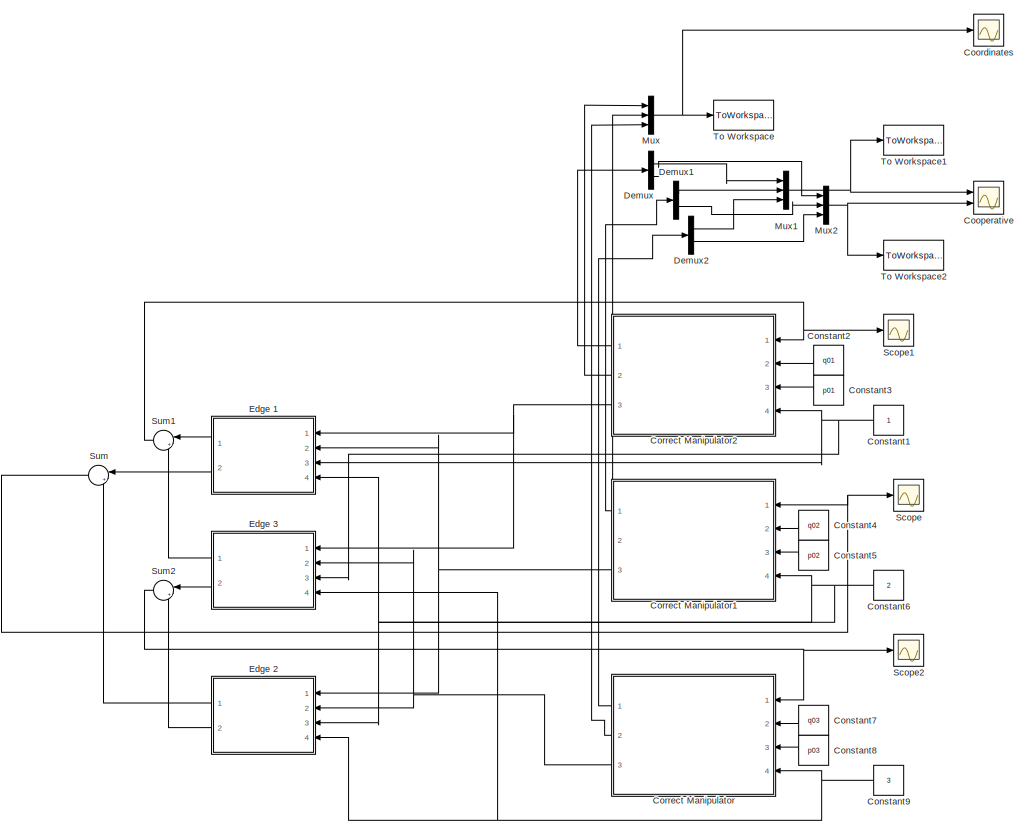
[diagram: root canvas - part 1/2, most of the canvas]
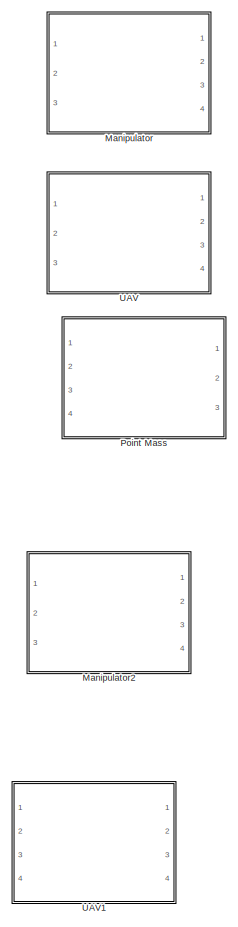
[diagram: root canvas - part 2/2, right side, full height]
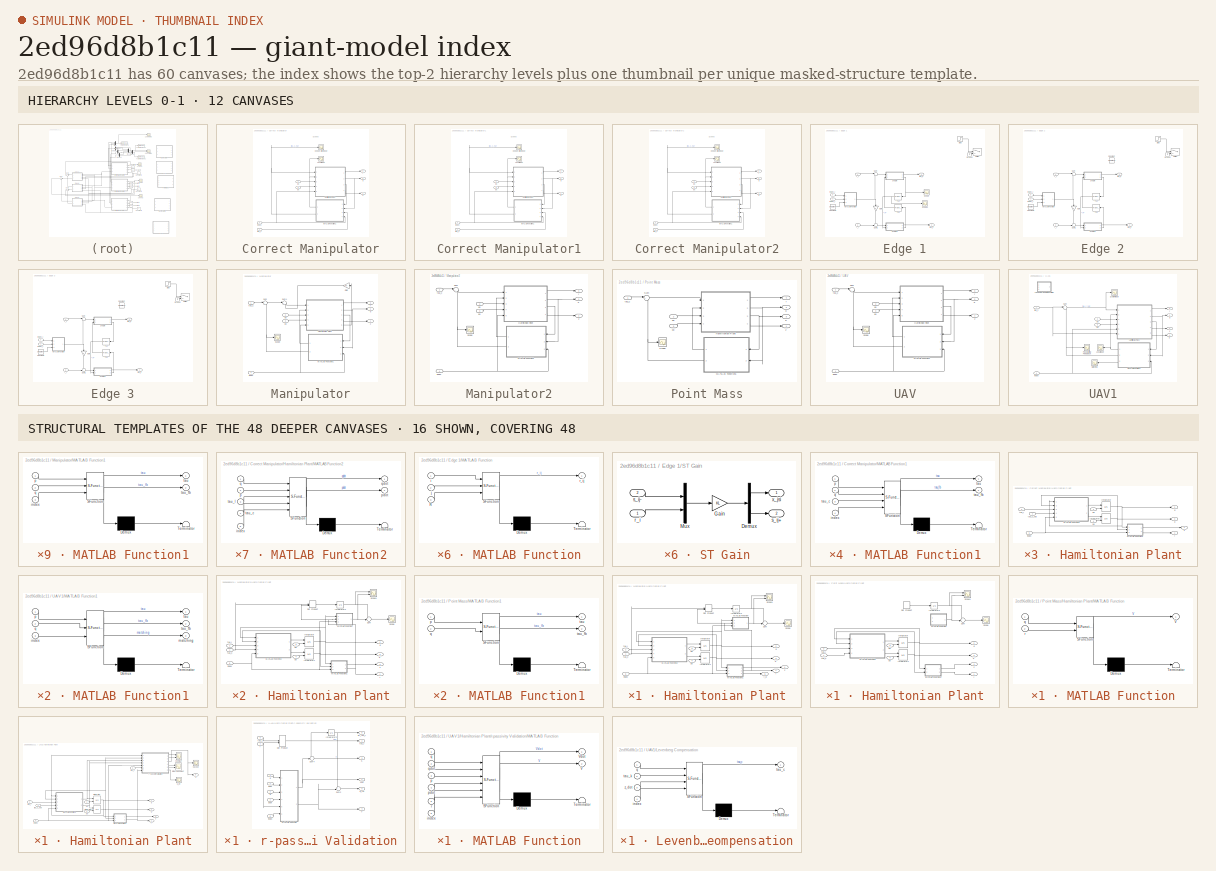
[diagram: thumbnail index - top-2 hierarchy levels (12 canvases) + 16 structural-template representatives of the remaining 48 canvases]
MODEL slx_2ed96d8b1c11
KIND model
CONFIG AbsTol = auto
CONFIG EnableMultiTasking = off
CONFIG FixedStep = auto
CONFIG MaxStep = auto
CONFIG MinStep = auto
CONFIG RelTol = 1e-5
CONFIG SampleTimeConstraint = Unconstrained
CONFIG Solver = ode23tb
CONFIG SolverName = ode23tb
CONFIG StartTime = 0.0
CONFIG StopTime = 20
BLOCK [Constant] Constant1
BLOCK [Constant] Constant2
  Value = q01
BLOCK [Constant] Constant3
  Value = p01
BLOCK [Constant] Constant4
  Value = q02
BLOCK [Constant] Constant5
  Value = p02
BLOCK [Constant] Constant6
  Value = 2
BLOCK [Constant] Constant7
  Value = q03
BLOCK [Constant] Constant8
  Value = p03
BLOCK [Constant] Constant9
  Value = 3
BLOCK [Scope] Cooperative
  Floating = off
  NumInputPorts = 2
  Ports = [2]
  ScopeSpecificationString = Simulink.scopes.TimeScopeBlockCfg('CurrentConfiguration', extmgr.ConfigurationSet(extmgr.Configuration('Core','General UI',true),extmgr.Configuration('Core','Source UI',true),extmgr.Configuration('Sources','WiredSimulink',true,'DataLoggingVariableName','ScopeData1'),extmgr.Configuration('Visuals','Time Domain',true,'SerializedDisplays',{struct('MinYLimReal','-1.66067','MaxYLimReal','1.92143','YLab...<+2579ch>
BLOCK [Scope] Coordinates
  Floating = off
  NumInputPorts = 1
  Ports = [1]
  ScopeSpecificationString = Simulink.scopes.TimeScopeBlockCfg('CurrentConfiguration', extmgr.ConfigurationSet(extmgr.Configuration('Core','General UI',true),extmgr.Configuration('Core','Source UI',true),extmgr.Configuration('Sources','WiredSimulink',true,'DataLoggingVariableName','ScopeData2'),extmgr.Configuration('Visuals','Time Domain',true,'SerializedDisplays',{struct('MinYLimReal','-4.46005','MaxYLimReal','2.9794','YLabe...<+1903ch>
BLOCK [SubSystem] Correct Manipulator
  Ports = [4, 3]
  RequestExecContextInheritance = off
BLOCK [Scope] Correct Manipulator/Cooperative Input
  Floating = off
  NumInputPorts = 1
  Ports = [1]
  ScopeSpecificationString = Simulink.scopes.TimeScopeBlockCfg('CurrentConfiguration', extmgr.ConfigurationSet(extmgr.Configuration('Core','General UI',true),extmgr.Configuration('Core','Source UI',true),extmgr.Configuration('Sources','WiredSimulink',true,'DataLoggingVariableName','ScopeData1'),extmgr.Configuration('Visuals','Time Domain',true,'SerializedDisplays',{struct('MinYLimReal','-0.98424','MaxYLimReal','1.38477','YLab...<+1441ch>  <repeated x3 — deduplicated; at blocks: Cooperative Input>
BLOCK [SubSystem] Correct Manipulator/Hamiltonian Plant
  Ports = [5, 4]
  RequestExecContextInheritance = off
BLOCK [Integrator] Correct Manipulator/Hamiltonian Plant/Integrator
  InitialCondition = q01
  InitialConditionSource = external
  Ports = [2, 1]
BLOCK [Integrator] Correct Manipulator/Hamiltonian Plant/Integrator1
  InitialCondition = p02
  InitialConditionSource = external
  Ports = [2, 1]
BLOCK [SubSystem] Correct Manipulator/Hamiltonian Plant/MATLAB Function1
  ErrorFcn = Stateflow.Translate.translate
  PermitHierarchicalResolution = ExplicitOnly
  Ports = [3, 2]
  RequestExecContextInheritance = off
  SFBlockType = MATLAB Function
  TreatAsAtomicUnit = on
BLOCK [Demux] Correct Manipulator/Hamiltonian Plant/MATLAB Function1/ Demux 
  Outputs = 1
  Ports = [1, 1]
BLOCK [S-Function] Correct Manipulator/Hamiltonian Plant/MATLAB Function1/ SFunction 
  EnableBusSupport = on
  FunctionName = sf_sfun
  PortCounts = [3 3]
  Ports = [3, 3]
  SFcnIsStateOwnerBlock = off
  SFunctionDeploymentMode = off
  Tag = Stateflow S-Function Model_3Systems 36
BLOCK [Terminator] Correct Manipulator/Hamiltonian Plant/MATLAB Function1/ Terminator 
BLOCK [Inport] Correct Manipulator/Hamiltonian Plant/MATLAB Function1/index
  IconDisplay = Port number
  Port = 3
BLOCK [Inport] Correct Manipulator/Hamiltonian Plant/MATLAB Function1/p
  IconDisplay = Port number
  Port = 2
BLOCK [Inport] Correct Manipulator/Hamiltonian Plant/MATLAB Function1/q
  IconDisplay = Port number
BLOCK [Outport] Correct Manipulator/Hamiltonian Plant/MATLAB Function1/r
  IconDisplay = Port number
  Port = 2
BLOCK [Outport] Correct Manipulator/Hamiltonian Plant/MATLAB Function1/z
  IconDisplay = Port number
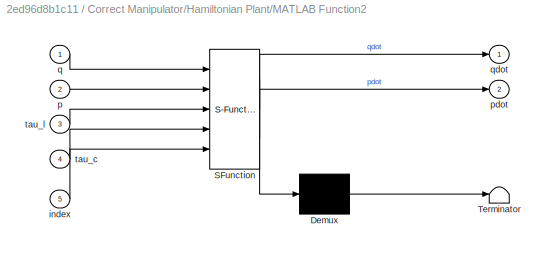
BLOCK [SubSystem] Correct Manipulator/Hamiltonian Plant/MATLAB Function2
  ErrorFcn = Stateflow.Translate.translate
  PermitHierarchicalResolution = ExplicitOnly
  Ports = [5, 2]
  RequestExecContextInheritance = off
  SFBlockType = MATLAB Function
  TreatAsAtomicUnit = on
BLOCK [Demux] Correct Manipulator/Hamiltonian Plant/MATLAB Function2/ Demux 
  Outputs = 1
  Ports = [1, 1]
BLOCK [S-Function] Correct Manipulator/Hamiltonian Plant/MATLAB Function2/ SFunction 
  EnableBusSupport = on
  FunctionName = sf_sfun
  PortCounts = [5 3]
  Ports = [5, 3]
  SFcnIsStateOwnerBlock = off
  SFunctionDeploymentMode = off
  Tag = Stateflow S-Function Model_3Systems 38
BLOCK [Terminator] Correct Manipulator/Hamiltonian Plant/MATLAB Function2/ Terminator 
BLOCK [Inport] Correct Manipulator/Hamiltonian Plant/MATLAB Function2/index
  IconDisplay = Port number
  Port = 5
BLOCK [Inport] Correct Manipulator/Hamiltonian Plant/MATLAB Function2/p
  IconDisplay = Port number
  Port = 2
BLOCK [Outport] Correct Manipulator/Hamiltonian Plant/MATLAB Function2/pdot
  IconDisplay = Port number
  Port = 2
BLOCK [Inport] Correct Manipulator/Hamiltonian Plant/MATLAB Function2/q
  IconDisplay = Port number
BLOCK [Outport] Correct Manipulator/Hamiltonian Plant/MATLAB Function2/qdot
  IconDisplay = Port number
BLOCK [Inport] Correct Manipulator/Hamiltonian Plant/MATLAB Function2/tau_c
  IconDisplay = Port number
  Port = 4
BLOCK [Inport] Correct Manipulator/Hamiltonian Plant/MATLAB Function2/tau_l
  IconDisplay = Port number
  Port = 3
BLOCK [Inport] Correct Manipulator/Hamiltonian Plant/index
  IconDisplay = Port number
  Port = 5
BLOCK [Outport] Correct Manipulator/Hamiltonian Plant/p
  IconDisplay = Port number
  Port = 3
BLOCK [Inport] Correct Manipulator/Hamiltonian Plant/p0
  IconDisplay = Port number
  Port = 4
BLOCK [Outport] Correct Manipulator/Hamiltonian Plant/q
  IconDisplay = Port number
  Port = 2
BLOCK [Inport] Correct Manipulator/Hamiltonian Plant/q0
  IconDisplay = Port number
  Port = 3
BLOCK [Outport] Correct Manipulator/Hamiltonian Plant/r
  IconDisplay = Port number
BLOCK [Inport] Correct Manipulator/Hamiltonian Plant/tau_c_hat
  IconDisplay = Port number
BLOCK [Inport] Correct Manipulator/Hamiltonian Plant/tau_l
  IconDisplay = Port number
  Port = 2
BLOCK [Outport] Correct Manipulator/Hamiltonian Plant/z
  IconDisplay = Port number
  Port = 4
BLOCK [Scope] Correct Manipulator/Local Input
  Floating = off
  NumInputPorts = 1
  Ports = [1]
  ScopeSpecificationString = Simulink.scopes.TimeScopeBlockCfg('CurrentConfiguration', extmgr.ConfigurationSet(extmgr.Configuration('Core','General UI',true),extmgr.Configuration('Core','Source UI',true),extmgr.Configuration('Sources','WiredSimulink',true,'DataLoggingVariableName','ScopeData1'),extmgr.Configuration('Visuals','Time Domain',true,'SerializedDisplays',{struct('MinYLimReal','-15.04673','MaxYLimReal','0.06127','YLa...<+1489ch>  <repeated x3 — deduplicated; at blocks: Local Input>
BLOCK [SubSystem] Correct Manipulator/MATLAB Function1
  ErrorFcn = Stateflow.Translate.translate
  PermitHierarchicalResolution = ExplicitOnly
  Ports = [4, 2]
  RequestExecContextInheritance = off
  SFBlockType = MATLAB Function
  TreatAsAtomicUnit = on
BLOCK [Demux] Correct Manipulator/MATLAB Function1/ Demux 
  Outputs = 1
  Ports = [1, 1]
BLOCK [S-Function] Correct Manipulator/MATLAB Function1/ SFunction 
  EnableBusSupport = on
  FunctionName = sf_sfun
  PortCounts = [4 3]
  Ports = [4, 3]
  SFcnIsStateOwnerBlock = off
  SFunctionDeploymentMode = off
  Tag = Stateflow S-Function Model_3Systems 39
BLOCK [Terminator] Correct Manipulator/MATLAB Function1/ Terminator 
BLOCK [Inport] Correct Manipulator/MATLAB Function1/index
  IconDisplay = Port number
  Port = 4
BLOCK [Inport] Correct Manipulator/MATLAB Function1/p
  IconDisplay = Port number
BLOCK [Inport] Correct Manipulator/MATLAB Function1/q
  IconDisplay = Port number
  Port = 2
BLOCK [Outport] Correct Manipulator/MATLAB Function1/tau
  IconDisplay = Port number
BLOCK [Inport] Correct Manipulator/MATLAB Function1/tau_c
  IconDisplay = Port number
  Port = 3
BLOCK [Outport] Correct Manipulator/MATLAB Function1/tau_fb
  IconDisplay = Port number
  Port = 2
BLOCK [Inport] Correct Manipulator/index
  IconDisplay = Port number
  Port = 4
BLOCK [Inport] Correct Manipulator/p0
  IconDisplay = Port number
  Port = 3
BLOCK [Outport] Correct Manipulator/q
  IconDisplay = Port number
  Port = 2
BLOCK [Inport] Correct Manipulator/q0
  IconDisplay = Port number
  Port = 2
BLOCK [Outport] Correct Manipulator/r
  IconDisplay = Port number
  Port = 3
BLOCK [Inport] Correct Manipulator/tau_c
  IconDisplay = Port number
BLOCK [Outport] Correct Manipulator/z
  IconDisplay = Port number
BLOCK [SubSystem] Correct Manipulator1
  Ports = [4, 3]
  RequestExecContextInheritance = off
BLOCK [Scope] Correct Manipulator1/Cooperative Input
  Floating = off
  NumInputPorts = 1
  Ports = [1]
BLOCK [SubSystem] Correct Manipulator1/Hamiltonian Plant
  Ports = [5, 4]
  RequestExecContextInheritance = off
BLOCK [Integrator] Correct Manipulator1/Hamiltonian Plant/Integrator
  InitialCondition = q01
  InitialConditionSource = external
  Ports = [2, 1]
BLOCK [Integrator] Correct Manipulator1/Hamiltonian Plant/Integrator1
  InitialCondition = p02
  InitialConditionSource = external
  Ports = [2, 1]
BLOCK [SubSystem] Correct Manipulator1/Hamiltonian Plant/MATLAB Function1
  ErrorFcn = Stateflow.Translate.translate
  PermitHierarchicalResolution = ExplicitOnly
  Ports = [3, 2]
  RequestExecContextInheritance = off
  SFBlockType = MATLAB Function
  TreatAsAtomicUnit = on
BLOCK [Demux] Correct Manipulator1/Hamiltonian Plant/MATLAB Function1/ Demux 
  Outputs = 1
  Ports = [1, 1]
BLOCK [S-Function] Correct Manipulator1/Hamiltonian Plant/MATLAB Function1/ SFunction 
  EnableBusSupport = on
  FunctionName = sf_sfun
  PortCounts = [3 3]
  Ports = [3, 3]
  SFcnIsStateOwnerBlock = off
  SFunctionDeploymentMode = off
  Tag = Stateflow S-Function Model_3Systems 5
BLOCK [Terminator] Correct Manipulator1/Hamiltonian Plant/MATLAB Function1/ Terminator 
BLOCK [Inport] Correct Manipulator1/Hamiltonian Plant/MATLAB Function1/index
  IconDisplay = Port number
  Port = 3
BLOCK [Inport] Correct Manipulator1/Hamiltonian Plant/MATLAB Function1/p
  IconDisplay = Port number
  Port = 2
BLOCK [Inport] Correct Manipulator1/Hamiltonian Plant/MATLAB Function1/q
  IconDisplay = Port number
BLOCK [Outport] Correct Manipulator1/Hamiltonian Plant/MATLAB Function1/r
  IconDisplay = Port number
  Port = 2
BLOCK [Outport] Correct Manipulator1/Hamiltonian Plant/MATLAB Function1/z
  IconDisplay = Port number
BLOCK [SubSystem] Correct Manipulator1/Hamiltonian Plant/MATLAB Function2
  ErrorFcn = Stateflow.Translate.translate
  PermitHierarchicalResolution = ExplicitOnly
  Ports = [5, 2]
  RequestExecContextInheritance = off
  SFBlockType = MATLAB Function
  TreatAsAtomicUnit = on
BLOCK [Demux] Correct Manipulator1/Hamiltonian Plant/MATLAB Function2/ Demux 
  Outputs = 1
  Ports = [1, 1]
BLOCK [S-Function] Correct Manipulator1/Hamiltonian Plant/MATLAB Function2/ SFunction 
  EnableBusSupport = on
  FunctionName = sf_sfun
  PortCounts = [5 3]
  Ports = [5, 3]
  SFcnIsStateOwnerBlock = off
  SFunctionDeploymentMode = off
  Tag = Stateflow S-Function Model_3Systems 6
BLOCK [Terminator] Correct Manipulator1/Hamiltonian Plant/MATLAB Function2/ Terminator 
BLOCK [Inport] Correct Manipulator1/Hamiltonian Plant/MATLAB Function2/index
  IconDisplay = Port number
  Port = 5
BLOCK [Inport] Correct Manipulator1/Hamiltonian Plant/MATLAB Function2/p
  IconDisplay = Port number
  Port = 2
BLOCK [Outport] Correct Manipulator1/Hamiltonian Plant/MATLAB Function2/pdot
  IconDisplay = Port number
  Port = 2
BLOCK [Inport] Correct Manipulator1/Hamiltonian Plant/MATLAB Function2/q
  IconDisplay = Port number
BLOCK [Outport] Correct Manipulator1/Hamiltonian Plant/MATLAB Function2/qdot
  IconDisplay = Port number
BLOCK [Inport] Correct Manipulator1/Hamiltonian Plant/MATLAB Function2/tau_c
  IconDisplay = Port number
  Port = 4
BLOCK [Inport] Correct Manipulator1/Hamiltonian Plant/MATLAB Function2/tau_l
  IconDisplay = Port number
  Port = 3
BLOCK [Inport] Correct Manipulator1/Hamiltonian Plant/index
  IconDisplay = Port number
  Port = 5
BLOCK [Outport] Correct Manipulator1/Hamiltonian Plant/p
  IconDisplay = Port number
  Port = 3
BLOCK [Inport] Correct Manipulator1/Hamiltonian Plant/p0
  IconDisplay = Port number
  Port = 4
BLOCK [Outport] Correct Manipulator1/Hamiltonian Plant/q
  IconDisplay = Port number
  Port = 2
BLOCK [Inport] Correct Manipulator1/Hamiltonian Plant/q0
  IconDisplay = Port number
  Port = 3
BLOCK [Outport] Correct Manipulator1/Hamiltonian Plant/r
  IconDisplay = Port number
BLOCK [Inport] Correct Manipulator1/Hamiltonian Plant/tau_c_hat
  IconDisplay = Port number
BLOCK [Inport] Correct Manipulator1/Hamiltonian Plant/tau_l
  IconDisplay = Port number
  Port = 2
BLOCK [Outport] Correct Manipulator1/Hamiltonian Plant/z
  IconDisplay = Port number
  Port = 4
BLOCK [Scope] Correct Manipulator1/Local Input
  Floating = off
  NumInputPorts = 1
  Ports = [1]
BLOCK [SubSystem] Correct Manipulator1/MATLAB Function1
  ErrorFcn = Stateflow.Translate.translate
  PermitHierarchicalResolution = ExplicitOnly
  Ports = [4, 2]
  RequestExecContextInheritance = off
  SFBlockType = MATLAB Function
  TreatAsAtomicUnit = on
BLOCK [Demux] Correct Manipulator1/MATLAB Function1/ Demux 
  Outputs = 1
  Ports = [1, 1]
BLOCK [S-Function] Correct Manipulator1/MATLAB Function1/ SFunction 
  EnableBusSupport = on
  FunctionName = sf_sfun
  PortCounts = [4 3]
  Ports = [4, 3]
  SFcnIsStateOwnerBlock = off
  SFunctionDeploymentMode = off
  Tag = Stateflow S-Function Model_3Systems 7
BLOCK [Terminator] Correct Manipulator1/MATLAB Function1/ Terminator 
BLOCK [Inport] Correct Manipulator1/MATLAB Function1/index
  IconDisplay = Port number
  Port = 4
BLOCK [Inport] Correct Manipulator1/MATLAB Function1/p
  IconDisplay = Port number
BLOCK [Inport] Correct Manipulator1/MATLAB Function1/q
  IconDisplay = Port number
  Port = 2
BLOCK [Outport] Correct Manipulator1/MATLAB Function1/tau
  IconDisplay = Port number
BLOCK [Inport] Correct Manipulator1/MATLAB Function1/tau_c
  IconDisplay = Port number
  Port = 3
BLOCK [Outport] Correct Manipulator1/MATLAB Function1/tau_fb
  IconDisplay = Port number
  Port = 2
BLOCK [Inport] Correct Manipulator1/index
  IconDisplay = Port number
  Port = 4
BLOCK [Inport] Correct Manipulator1/p0
  IconDisplay = Port number
  Port = 3
BLOCK [Outport] Correct Manipulator1/q
  IconDisplay = Port number
  Port = 2
BLOCK [Inport] Correct Manipulator1/q0
  IconDisplay = Port number
  Port = 2
BLOCK [Outport] Correct Manipulator1/r
  IconDisplay = Port number
  Port = 3
BLOCK [Inport] Correct Manipulator1/tau_c
  IconDisplay = Port number
BLOCK [Outport] Correct Manipulator1/z
  IconDisplay = Port number
BLOCK [SubSystem] Correct Manipulator2
  Ports = [4, 3]
  RequestExecContextInheritance = off
BLOCK [Scope] Correct Manipulator2/Cooperative Input
  Floating = off
  NumInputPorts = 1
  Ports = [1]
BLOCK [SubSystem] Correct Manipulator2/Hamiltonian Plant
  Ports = [5, 4]
  RequestExecContextInheritance = off
BLOCK [Integrator] Correct Manipulator2/Hamiltonian Plant/Integrator
  InitialCondition = q01
  InitialConditionSource = external
  Ports = [2, 1]
BLOCK [Integrator] Correct Manipulator2/Hamiltonian Plant/Integrator1
  InitialCondition = p02
  InitialConditionSource = external
  Ports = [2, 1]
BLOCK [SubSystem] Correct Manipulator2/Hamiltonian Plant/MATLAB Function1
  ErrorFcn = Stateflow.Translate.translate
  PermitHierarchicalResolution = ExplicitOnly
  Ports = [3, 2]
  RequestExecContextInheritance = off
  SFBlockType = MATLAB Function
  TreatAsAtomicUnit = on
BLOCK [Demux] Correct Manipulator2/Hamiltonian Plant/MATLAB Function1/ Demux 
  Outputs = 1
  Ports = [1, 1]
BLOCK [S-Function] Correct Manipulator2/Hamiltonian Plant/MATLAB Function1/ SFunction 
  EnableBusSupport = on
  FunctionName = sf_sfun
  PortCounts = [3 3]
  Ports = [3, 3]
  SFcnIsStateOwnerBlock = off
  SFunctionDeploymentMode = off
  Tag = Stateflow S-Function Model_3Systems 8
BLOCK [Terminator] Correct Manipulator2/Hamiltonian Plant/MATLAB Function1/ Terminator 
BLOCK [Inport] Correct Manipulator2/Hamiltonian Plant/MATLAB Function1/index
  IconDisplay = Port number
  Port = 3
BLOCK [Inport] Correct Manipulator2/Hamiltonian Plant/MATLAB Function1/p
  IconDisplay = Port number
  Port = 2
BLOCK [Inport] Correct Manipulator2/Hamiltonian Plant/MATLAB Function1/q
  IconDisplay = Port number
BLOCK [Outport] Correct Manipulator2/Hamiltonian Plant/MATLAB Function1/r
  IconDisplay = Port number
  Port = 2
BLOCK [Outport] Correct Manipulator2/Hamiltonian Plant/MATLAB Function1/z
  IconDisplay = Port number
BLOCK [SubSystem] Correct Manipulator2/Hamiltonian Plant/MATLAB Function2
  ErrorFcn = Stateflow.Translate.translate
  PermitHierarchicalResolution = ExplicitOnly
  Ports = [5, 2]
  RequestExecContextInheritance = off
  SFBlockType = MATLAB Function
  TreatAsAtomicUnit = on
BLOCK [Demux] Correct Manipulator2/Hamiltonian Plant/MATLAB Function2/ Demux 
  Outputs = 1
  Ports = [1, 1]
BLOCK [S-Function] Correct Manipulator2/Hamiltonian Plant/MATLAB Function2/ SFunction 
  EnableBusSupport = on
  FunctionName = sf_sfun
  PortCounts = [5 3]
  Ports = [5, 3]
  SFcnIsStateOwnerBlock = off
  SFunctionDeploymentMode = off
  Tag = Stateflow S-Function Model_3Systems 23
BLOCK [Terminator] Correct Manipulator2/Hamiltonian Plant/MATLAB Function2/ Terminator 
BLOCK [Inport] Correct Manipulator2/Hamiltonian Plant/MATLAB Function2/index
  IconDisplay = Port number
  Port = 5
BLOCK [Inport] Correct Manipulator2/Hamiltonian Plant/MATLAB Function2/p
  IconDisplay = Port number
  Port = 2
BLOCK [Outport] Correct Manipulator2/Hamiltonian Plant/MATLAB Function2/pdot
  IconDisplay = Port number
  Port = 2
BLOCK [Inport] Correct Manipulator2/Hamiltonian Plant/MATLAB Function2/q
  IconDisplay = Port number
BLOCK [Outport] Correct Manipulator2/Hamiltonian Plant/MATLAB Function2/qdot
  IconDisplay = Port number
BLOCK [Inport] Correct Manipulator2/Hamiltonian Plant/MATLAB Function2/tau_c
  IconDisplay = Port number
  Port = 4
BLOCK [Inport] Correct Manipulator2/Hamiltonian Plant/MATLAB Function2/tau_l
  IconDisplay = Port number
  Port = 3
BLOCK [Inport] Correct Manipulator2/Hamiltonian Plant/index
  IconDisplay = Port number
  Port = 5
BLOCK [Outport] Correct Manipulator2/Hamiltonian Plant/p
  IconDisplay = Port number
  Port = 3
BLOCK [Inport] Correct Manipulator2/Hamiltonian Plant/p0
  IconDisplay = Port number
  Port = 4
BLOCK [Outport] Correct Manipulator2/Hamiltonian Plant/q
  IconDisplay = Port number
  Port = 2
BLOCK [Inport] Correct Manipulator2/Hamiltonian Plant/q0
  IconDisplay = Port number
  Port = 3
BLOCK [Outport] Correct Manipulator2/Hamiltonian Plant/r
  IconDisplay = Port number
BLOCK [Inport] Correct Manipulator2/Hamiltonian Plant/tau_c_hat
  IconDisplay = Port number
BLOCK [Inport] Correct Manipulator2/Hamiltonian Plant/tau_l
  IconDisplay = Port number
  Port = 2
BLOCK [Outport] Correct Manipulator2/Hamiltonian Plant/z
  IconDisplay = Port number
  Port = 4
BLOCK [Scope] Correct Manipulator2/Local Input
  Floating = off
  NumInputPorts = 1
  Ports = [1]
BLOCK [SubSystem] Correct Manipulator2/MATLAB Function1
  ErrorFcn = Stateflow.Translate.translate
  PermitHierarchicalResolution = ExplicitOnly
  Ports = [4, 2]
  RequestExecContextInheritance = off
  SFBlockType = MATLAB Function
  TreatAsAtomicUnit = on
BLOCK [Demux] Correct Manipulator2/MATLAB Function1/ Demux 
  Outputs = 1
  Ports = [1, 1]
BLOCK [S-Function] Correct Manipulator2/MATLAB Function1/ SFunction 
  EnableBusSupport = on
  FunctionName = sf_sfun
  PortCounts = [4 3]
  Ports = [4, 3]
  SFcnIsStateOwnerBlock = off
  SFunctionDeploymentMode = off
  Tag = Stateflow S-Function Model_3Systems 24
BLOCK [Terminator] Correct Manipulator2/MATLAB Function1/ Terminator 
BLOCK [Inport] Correct Manipulator2/MATLAB Function1/index
  IconDisplay = Port number
  Port = 4
BLOCK [Inport] Correct Manipulator2/MATLAB Function1/p
  IconDisplay = Port number
BLOCK [Inport] Correct Manipulator2/MATLAB Function1/q
  IconDisplay = Port number
  Port = 2
BLOCK [Outport] Correct Manipulator2/MATLAB Function1/tau
  IconDisplay = Port number
BLOCK [Inport] Correct Manipulator2/MATLAB Function1/tau_c
  IconDisplay = Port number
  Port = 3
BLOCK [Outport] Correct Manipulator2/MATLAB Function1/tau_fb
  IconDisplay = Port number
  Port = 2
BLOCK [Inport] Correct Manipulator2/index
  IconDisplay = Port number
  Port = 4
BLOCK [Inport] Correct Manipulator2/p0
  IconDisplay = Port number
  Port = 3
BLOCK [Outport] Correct Manipulator2/q
  IconDisplay = Port number
  Port = 2
BLOCK [Inport] Correct Manipulator2/q0
  IconDisplay = Port number
  Port = 2
BLOCK [Outport] Correct Manipulator2/r
  IconDisplay = Port number
  Port = 3
BLOCK [Inport] Correct Manipulator2/tau_c
  IconDisplay = Port number
BLOCK [Outport] Correct Manipulator2/z
  IconDisplay = Port number
BLOCK [Demux] Demux
  DisplayOption = bar
  Outputs = 2
  Ports = [1, 2]
BLOCK [Demux] Demux1
  DisplayOption = bar
  Outputs = 2
  Ports = [1, 2]
BLOCK [Demux] Demux2
  DisplayOption = bar
  Outputs = 2
  Ports = [1, 2]
BLOCK [SubSystem] Edge 1
  Ports = [4, 2]
  RequestExecContextInheritance = off
BLOCK [Constant] Edge 1/Constant1
  Value = Simulation.R
BLOCK [Gain] Edge 1/Gain
  Gain = -1
  OutDataTypeStr = Inherit: Inherit via internal rule
  ParamDataTypeStr = Inherit: Inherit via internal rule
  SaturateOnIntegerOverflow = off
BLOCK [Ground] Edge 1/Ground
  Commented = on
BLOCK [SubSystem] Edge 1/MATLAB Function
  ErrorFcn = Stateflow.Translate.translate
  PermitHierarchicalResolution = ExplicitOnly
  Ports = [3, 1]
  RequestExecContextInheritance = off
  SFBlockType = MATLAB Function
  TreatAsAtomicUnit = on
BLOCK [Demux] Edge 1/MATLAB Function/ Demux 
  Outputs = 1
  Ports = [1, 1]
BLOCK [S-Function] Edge 1/MATLAB Function/ SFunction 
  EnableBusSupport = on
  FunctionName = sf_sfun
  PortCounts = [3 2]
  Ports = [3, 2]
  SFcnIsStateOwnerBlock = off
  SFunctionDeploymentMode = off
  Tag = Stateflow S-Function Model_3Systems 3
BLOCK [Terminator] Edge 1/MATLAB Function/ Terminator 
BLOCK [Inport] Edge 1/MATLAB Function/R
  IconDisplay = Port number
  Port = 3
BLOCK [Inport] Edge 1/MATLAB Function/i
  IconDisplay = Port number
BLOCK [Inport] Edge 1/MATLAB Function/j
  IconDisplay = Port number
  Port = 2
BLOCK [Outport] Edge 1/MATLAB Function/r_ij
  IconDisplay = Port number
BLOCK [SubSystem] Edge 1/ST Gain
  Ports = [2, 2]
  RequestExecContextInheritance = off
BLOCK [Demux] Edge 1/ST Gain/Demux
  DisplayOption = bar
  Outputs = 2
  Ports = [1, 2]
BLOCK [Gain] Edge 1/ST Gain/Gain
  Gain = KL
  Multiplication = Matrix(K*u)
  OutDataTypeStr = Inherit: Inherit via internal rule
  ParamDataTypeStr = Inherit: Inherit via internal rule
  SaturateOnIntegerOverflow = off
BLOCK [Mux] Edge 1/ST Gain/Mux
  DisplayOption = bar
  Inputs = 2
  Ports = [2, 1]
BLOCK [Inport] Edge 1/ST Gain/r_i
  IconDisplay = Port number
BLOCK [Outport] Edge 1/ST Gain/s_ij+
  IconDisplay = Port number
  Port = 2
BLOCK [Inport] Edge 1/ST Gain/s_ij-
  IconDisplay = Port number
  Port = 2
BLOCK [Outport] Edge 1/ST Gain/x_jsi
  IconDisplay = Port number
BLOCK [SubSystem] Edge 1/ST Gain1
  Ports = [2, 2]
  RequestExecContextInheritance = off
BLOCK [Demux] Edge 1/ST Gain1/Demux
  DisplayOption = bar
  Outputs = 2
  Ports = [1, 2]
BLOCK [Gain] Edge 1/ST Gain1/Gain
  Gain = KR
  Multiplication = Matrix(K*u)
  OutDataTypeStr = Inherit: Inherit via internal rule
  ParamDataTypeStr = Inherit: Inherit via internal rule
  SaturateOnIntegerOverflow = off
BLOCK [Mux] Edge 1/ST Gain1/Mux
  DisplayOption = bar
  Inputs = 2
  Ports = [2, 1]
BLOCK [Inport] Edge 1/ST Gain1/r_j
  IconDisplay = Port number
BLOCK [Inport] Edge 1/ST Gain1/s_ji+
  IconDisplay = Port number
  Port = 2
BLOCK [Outport] Edge 1/ST Gain1/s_ji-
  IconDisplay = Port number
  Port = 2
BLOCK [Outport] Edge 1/ST Gain1/x_isj
  IconDisplay = Port number
BLOCK [Scope] Edge 1/Scope
  Floating = off
  NumInputPorts = 1
  Ports = [1]
  ScopeSpecificationString = Simulink.scopes.TimeScopeBlockCfg('CurrentConfiguration', extmgr.ConfigurationSet(extmgr.Configuration('Core','General UI',true),extmgr.Configuration('Core','Source UI',true),extmgr.Configuration('Sources','WiredSimulink',true,'DataLoggingVariableName','ScopeData1'),extmgr.Configuration('Visuals','Time Domain',true,'SerializedDisplays',{struct('MinYLimReal','0.10801','MaxYLimReal','3.0058','YLabel...<+1411ch>
BLOCK [Scope] Edge 1/Scope1
  Floating = off
  NumInputPorts = 1
  Ports = [1]
  ScopeSpecificationString = Simulink.scopes.TimeScopeBlockCfg('CurrentConfiguration', extmgr.ConfigurationSet(extmgr.Configuration('Core','General UI',true),extmgr.Configuration('Core','Source UI',true),extmgr.Configuration('Sources','WiredSimulink',true,'DataLoggingVariableName','ScopeData2'),extmgr.Configuration('Visuals','Time Domain',true,'SerializedDisplays',{struct('MinYLimReal','-0.24226','MaxYLimReal','2.18035','YLab...<+1410ch>
BLOCK [Step] Edge 1/Step
  Commented = on
  SampleTime = 0.01
  Time = T21
BLOCK [Sum] Edge 1/Sum
  IconShape = round
  InputSameDT = off
  Inputs = |++
  OutDataTypeStr = Inherit: Inherit via internal rule
  Ports = [2, 1]
  SaturateOnIntegerOverflow = off
BLOCK [Sum] Edge 1/Sum1
  IconShape = round
  InputSameDT = off
  Inputs = ++|
  OutDataTypeStr = Inherit: Inherit via internal rule
  Ports = [2, 1]
  SaturateOnIntegerOverflow = off
BLOCK [Switch] Edge 1/Switch
  Commented = on
  Criteria = u2 > Threshold
  InputSameDT = off
  SaturateOnIntegerOverflow = off
BLOCK [TransportDelay] Edge 1/T12
  DelayTime = T12
  Ports = [1, 1]
BLOCK [TransportDelay] Edge 1/T21
  DelayTime = T21
  Ports = [1, 1]
BLOCK [Inport] Edge 1/index_i
  IconDisplay = Port number
  Port = 3
BLOCK [Inport] Edge 1/index_j
  IconDisplay = Port number
  Port = 4
BLOCK [Inport] Edge 1/r_i
  IconDisplay = Port number
BLOCK [Inport] Edge 1/r_j
  IconDisplay = Port number
  Port = 2
BLOCK [Outport] Edge 1/tau_ij
  IconDisplay = Port number
BLOCK [Outport] Edge 1/tau_ji
  IconDisplay = Port number
  Port = 2
BLOCK [SubSystem] Edge 2
  Ports = [4, 2]
  RequestExecContextInheritance = off
BLOCK [Constant] Edge 2/Constant
  Commented = on
  Value = Simulation.R
BLOCK [Constant] Edge 2/Constant1
  Value = Simulation.R
BLOCK [Gain] Edge 2/Gain
  Gain = -1
  OutDataTypeStr = Inherit: Inherit via internal rule
  ParamDataTypeStr = Inherit: Inherit via internal rule
  SaturateOnIntegerOverflow = off
BLOCK [Ground] Edge 2/Ground
  Commented = on
BLOCK [SubSystem] Edge 2/MATLAB Function
  ErrorFcn = Stateflow.Translate.translate
  PermitHierarchicalResolution = ExplicitOnly
  Ports = [3, 1]
  RequestExecContextInheritance = off
  SFBlockType = MATLAB Function
  TreatAsAtomicUnit = on
BLOCK [Demux] Edge 2/MATLAB Function/ Demux 
  Outputs = 1
  Ports = [1, 1]
BLOCK [S-Function] Edge 2/MATLAB Function/ SFunction 
  EnableBusSupport = on
  FunctionName = sf_sfun
  PortCounts = [3 2]
  Ports = [3, 2]
  SFcnIsStateOwnerBlock = off
  SFunctionDeploymentMode = off
  Tag = Stateflow S-Function Model_3Systems 4
BLOCK [Terminator] Edge 2/MATLAB Function/ Terminator 
BLOCK [Inport] Edge 2/MATLAB Function/R
  IconDisplay = Port number
  Port = 3
BLOCK [Inport] Edge 2/MATLAB Function/i
  IconDisplay = Port number
BLOCK [Inport] Edge 2/MATLAB Function/j
  IconDisplay = Port number
  Port = 2
BLOCK [Outport] Edge 2/MATLAB Function/r_ij
  IconDisplay = Port number
BLOCK [SubSystem] Edge 2/ST Gain
  Ports = [2, 2]
  RequestExecContextInheritance = off
BLOCK [Demux] Edge 2/ST Gain/Demux
  DisplayOption = bar
  Outputs = 2
  Ports = [1, 2]
BLOCK [Gain] Edge 2/ST Gain/Gain
  Gain = KL
  Multiplication = Matrix(K*u)
  OutDataTypeStr = Inherit: Inherit via internal rule
  ParamDataTypeStr = Inherit: Inherit via internal rule
  SaturateOnIntegerOverflow = off
BLOCK [Mux] Edge 2/ST Gain/Mux
  DisplayOption = bar
  Inputs = 2
  Ports = [2, 1]
BLOCK [Inport] Edge 2/ST Gain/r_i
  IconDisplay = Port number
BLOCK [Outport] Edge 2/ST Gain/s_ij+
  IconDisplay = Port number
  Port = 2
BLOCK [Inport] Edge 2/ST Gain/s_ij-
  IconDisplay = Port number
  Port = 2
BLOCK [Outport] Edge 2/ST Gain/x_jsi
  IconDisplay = Port number
BLOCK [SubSystem] Edge 2/ST Gain1
  Ports = [2, 2]
  RequestExecContextInheritance = off
BLOCK [Demux] Edge 2/ST Gain1/Demux
  DisplayOption = bar
  Outputs = 2
  Ports = [1, 2]
BLOCK [Gain] Edge 2/ST Gain1/Gain
  Gain = KR
  Multiplication = Matrix(K*u)
  OutDataTypeStr = Inherit: Inherit via internal rule
  ParamDataTypeStr = Inherit: Inherit via internal rule
  SaturateOnIntegerOverflow = off
BLOCK [Mux] Edge 2/ST Gain1/Mux
  DisplayOption = bar
  Inputs = 2
  Ports = [2, 1]
BLOCK [Inport] Edge 2/ST Gain1/r_j
  IconDisplay = Port number
BLOCK [Inport] Edge 2/ST Gain1/s_ji+
  IconDisplay = Port number
  Port = 2
BLOCK [Outport] Edge 2/ST Gain1/s_ji-
  IconDisplay = Port number
  Port = 2
BLOCK [Outport] Edge 2/ST Gain1/x_isj
  IconDisplay = Port number
BLOCK [Step] Edge 2/Step
  Commented = on
  SampleTime = 0.01
  Time = T21
BLOCK [Sum] Edge 2/Sum
  IconShape = round
  InputSameDT = off
  Inputs = |++
  OutDataTypeStr = Inherit: Inherit via internal rule
  Ports = [2, 1]
  SaturateOnIntegerOverflow = off
BLOCK [Sum] Edge 2/Sum1
  IconShape = round
  InputSameDT = off
  Inputs = ++|
  OutDataTypeStr = Inherit: Inherit via internal rule
  Ports = [2, 1]
  SaturateOnIntegerOverflow = off
BLOCK [Switch] Edge 2/Switch
  Commented = on
  Criteria = u2 > Threshold
  InputSameDT = off
  SaturateOnIntegerOverflow = off
BLOCK [TransportDelay] Edge 2/T12
  DelayTime = T23
  Ports = [1, 1]
BLOCK [TransportDelay] Edge 2/T21
  DelayTime = T32
  Ports = [1, 1]
BLOCK [Inport] Edge 2/index_i
  IconDisplay = Port number
  Port = 3
BLOCK [Inport] Edge 2/index_j
  IconDisplay = Port number
  Port = 4
BLOCK [Inport] Edge 2/r_i
  IconDisplay = Port number
BLOCK [Inport] Edge 2/r_j
  IconDisplay = Port number
  Port = 2
BLOCK [Outport] Edge 2/tau_ij
  IconDisplay = Port number
BLOCK [Outport] Edge 2/tau_ji
  IconDisplay = Port number
  Port = 2
BLOCK [SubSystem] Edge 3
  Ports = [4, 2]
  RequestExecContextInheritance = off
BLOCK [Constant] Edge 3/Constant
  Commented = on
  Value = Simulation.R
BLOCK [Constant] Edge 3/Constant1
  Value = Simulation.R
BLOCK [Gain] Edge 3/Gain
  Gain = -1
  OutDataTypeStr = Inherit: Inherit via internal rule
  ParamDataTypeStr = Inherit: Inherit via internal rule
  SaturateOnIntegerOverflow = off
BLOCK [Ground] Edge 3/Ground
  Commented = on
BLOCK [SubSystem] Edge 3/MATLAB Function
  ErrorFcn = Stateflow.Translate.translate
  PermitHierarchicalResolution = ExplicitOnly
  Ports = [3, 1]
  RequestExecContextInheritance = off
  SFBlockType = MATLAB Function
  TreatAsAtomicUnit = on
BLOCK [Demux] Edge 3/MATLAB Function/ Demux 
  Outputs = 1
  Ports = [1, 1]
BLOCK [S-Function] Edge 3/MATLAB Function/ SFunction 
  EnableBusSupport = on
  FunctionName = sf_sfun
  PortCounts = [3 2]
  Ports = [3, 2]
  SFcnIsStateOwnerBlock = off
  SFunctionDeploymentMode = off
  Tag = Stateflow S-Function Model_3Systems 33
BLOCK [Terminator] Edge 3/MATLAB Function/ Terminator 
BLOCK [Inport] Edge 3/MATLAB Function/R
  IconDisplay = Port number
  Port = 3
BLOCK [Inport] Edge 3/MATLAB Function/i
  IconDisplay = Port number
BLOCK [Inport] Edge 3/MATLAB Function/j
  IconDisplay = Port number
  Port = 2
BLOCK [Outport] Edge 3/MATLAB Function/r_ij
  IconDisplay = Port number
BLOCK [SubSystem] Edge 3/ST Gain
  Ports = [2, 2]
  RequestExecContextInheritance = off
BLOCK [Demux] Edge 3/ST Gain/Demux
  DisplayOption = bar
  Outputs = 2
  Ports = [1, 2]
BLOCK [Gain] Edge 3/ST Gain/Gain
  Gain = KL
  Multiplication = Matrix(K*u)
  OutDataTypeStr = Inherit: Inherit via internal rule
  ParamDataTypeStr = Inherit: Inherit via internal rule
  SaturateOnIntegerOverflow = off
BLOCK [Mux] Edge 3/ST Gain/Mux
  DisplayOption = bar
  Inputs = 2
  Ports = [2, 1]
BLOCK [Inport] Edge 3/ST Gain/r_i
  IconDisplay = Port number
BLOCK [Outport] Edge 3/ST Gain/s_ij+
  IconDisplay = Port number
  Port = 2
BLOCK [Inport] Edge 3/ST Gain/s_ij-
  IconDisplay = Port number
  Port = 2
BLOCK [Outport] Edge 3/ST Gain/x_jsi
  IconDisplay = Port number
BLOCK [SubSystem] Edge 3/ST Gain1
  Ports = [2, 2]
  RequestExecContextInheritance = off
BLOCK [Demux] Edge 3/ST Gain1/Demux
  DisplayOption = bar
  Outputs = 2
  Ports = [1, 2]
BLOCK [Gain] Edge 3/ST Gain1/Gain
  Gain = KR
  Multiplication = Matrix(K*u)
  OutDataTypeStr = Inherit: Inherit via internal rule
  ParamDataTypeStr = Inherit: Inherit via internal rule
  SaturateOnIntegerOverflow = off
BLOCK [Mux] Edge 3/ST Gain1/Mux
  DisplayOption = bar
  Inputs = 2
  Ports = [2, 1]
BLOCK [Inport] Edge 3/ST Gain1/r_j
  IconDisplay = Port number
BLOCK [Inport] Edge 3/ST Gain1/s_ji+
  IconDisplay = Port number
  Port = 2
BLOCK [Outport] Edge 3/ST Gain1/s_ji-
  IconDisplay = Port number
  Port = 2
BLOCK [Outport] Edge 3/ST Gain1/x_isj
  IconDisplay = Port number
BLOCK [Step] Edge 3/Step
  Commented = on
  SampleTime = 0.01
  Time = T21
BLOCK [Sum] Edge 3/Sum
  IconShape = round
  InputSameDT = off
  Inputs = |++
  OutDataTypeStr = Inherit: Inherit via internal rule
  Ports = [2, 1]
  SaturateOnIntegerOverflow = off
BLOCK [Sum] Edge 3/Sum1
  IconShape = round
  InputSameDT = off
  Inputs = ++|
  OutDataTypeStr = Inherit: Inherit via internal rule
  Ports = [2, 1]
  SaturateOnIntegerOverflow = off
BLOCK [Switch] Edge 3/Switch
  Commented = on
  Criteria = u2 > Threshold
  InputSameDT = off
  SaturateOnIntegerOverflow = off
BLOCK [TransportDelay] Edge 3/T12
  DelayTime = T23
  Ports = [1, 1]
BLOCK [TransportDelay] Edge 3/T21
  DelayTime = T32
  Ports = [1, 1]
BLOCK [Inport] Edge 3/index_i
  IconDisplay = Port number
  Port = 3
BLOCK [Inport] Edge 3/index_j
  IconDisplay = Port number
  Port = 4
BLOCK [Inport] Edge 3/r_i
  IconDisplay = Port number
BLOCK [Inport] Edge 3/r_j
  IconDisplay = Port number
  Port = 2
BLOCK [Outport] Edge 3/tau_ij
  IconDisplay = Port number
BLOCK [Outport] Edge 3/tau_ji
  IconDisplay = Port number
  Port = 2
BLOCK [SubSystem] Manipulator
  Commented = on
  Ports = [4, 3]
  RequestExecContextInheritance = off
BLOCK [Gain] Manipulator/Gain
  Gain = -Kv
  Multiplication = Matrix(K*u)
  OutDataTypeStr = Inherit: Inherit via internal rule
  ParamDataTypeStr = Inherit: Inherit via internal rule
  SaturateOnIntegerOverflow = off
BLOCK [SubSystem] Manipulator/Hamiltonian Plant
  Ports = [5, 5]
  RequestExecContextInheritance = off
BLOCK [DotProduct] Manipulator/Hamiltonian Plant/Dot Product
  Commented = on
  OutDataTypeStr = Inherit: Inherit via internal rule
BLOCK [Integrator] Manipulator/Hamiltonian Plant/Integrator
  InitialCondition = q01
  InitialConditionSource = external
  Ports = [2, 1]
BLOCK [Integrator] Manipulator/Hamiltonian Plant/Integrator1
  InitialCondition = p02
  InitialConditionSource = external
  Ports = [2, 1]
BLOCK [Integrator] Manipulator/Hamiltonian Plant/Integrator2
  Commented = on
  Ports = [1, 1]
BLOCK [SubSystem] Manipulator/Hamiltonian Plant/MATLAB Function
  Commented = on
  ErrorFcn = Stateflow.Translate.translate
  PermitHierarchicalResolution = ExplicitOnly
  Ports = [3, 1]
  RequestExecContextInheritance = off
  SFBlockType = MATLAB Function
  TreatAsAtomicUnit = on
BLOCK [Demux] Manipulator/Hamiltonian Plant/MATLAB Function/ Demux 
  Outputs = 1
  Ports = [1, 1]
BLOCK [S-Function] Manipulator/Hamiltonian Plant/MATLAB Function/ SFunction 
  EnableBusSupport = on
  FunctionName = sf_sfun
  Parameters = Vr0
  PortCounts = [3 2]
  Ports = [3, 2]
  SFcnIsStateOwnerBlock = off
  SFunctionDeploymentMode = off
  Tag = Stateflow S-Function Model_3Systems 16
BLOCK [Terminator] Manipulator/Hamiltonian Plant/MATLAB Function/ Terminator 
BLOCK [Outport] Manipulator/Hamiltonian Plant/MATLAB Function/V
  IconDisplay = Port number
BLOCK [Inport] Manipulator/Hamiltonian Plant/MATLAB Function/index
  IconDisplay = Port number
  Port = 3
BLOCK [Inport] Manipulator/Hamiltonian Plant/MATLAB Function/q
  IconDisplay = Port number
BLOCK [Inport] Manipulator/Hamiltonian Plant/MATLAB Function/r
  IconDisplay = Port number
  Port = 2
BLOCK [SubSystem] Manipulator/Hamiltonian Plant/MATLAB Function1
  ErrorFcn = Stateflow.Translate.translate
  PermitHierarchicalResolution = ExplicitOnly
  Ports = [3, 3]
  RequestExecContextInheritance = off
  SFBlockType = MATLAB Function
  TreatAsAtomicUnit = on
BLOCK [Demux] Manipulator/Hamiltonian Plant/MATLAB Function1/ Demux 
  Outputs = 1
  Ports = [1, 1]
BLOCK [S-Function] Manipulator/Hamiltonian Plant/MATLAB Function1/ SFunction 
  EnableBusSupport = on
  FunctionName = sf_sfun
  PortCounts = [3 4]
  Ports = [3, 4]
  SFcnIsStateOwnerBlock = off
  SFunctionDeploymentMode = off
  Tag = Stateflow S-Function Model_3Systems 17
BLOCK [Terminator] Manipulator/Hamiltonian Plant/MATLAB Function1/ Terminator 
BLOCK [Inport] Manipulator/Hamiltonian Plant/MATLAB Function1/index
  IconDisplay = Port number
  Port = 3
BLOCK [Inport] Manipulator/Hamiltonian Plant/MATLAB Function1/p
  IconDisplay = Port number
  Port = 2
BLOCK [Inport] Manipulator/Hamiltonian Plant/MATLAB Function1/q
  IconDisplay = Port number
BLOCK [Outport] Manipulator/Hamiltonian Plant/MATLAB Function1/r
  IconDisplay = Port number
  Port = 2
BLOCK [Outport] Manipulator/Hamiltonian Plant/MATLAB Function1/y_d
  IconDisplay = Port number
  Port = 3
BLOCK [Outport] Manipulator/Hamiltonian Plant/MATLAB Function1/z
  IconDisplay = Port number
BLOCK [SubSystem] Manipulator/Hamiltonian Plant/MATLAB Function2
  ErrorFcn = Stateflow.Translate.translate
  PermitHierarchicalResolution = ExplicitOnly
  Ports = [5, 2]
  RequestExecContextInheritance = off
  SFBlockType = MATLAB Function
  TreatAsAtomicUnit = on
BLOCK [Demux] Manipulator/Hamiltonian Plant/MATLAB Function2/ Demux 
  Outputs = 1
  Ports = [1, 1]
BLOCK [S-Function] Manipulator/Hamiltonian Plant/MATLAB Function2/ SFunction 
  EnableBusSupport = on
  FunctionName = sf_sfun
  PortCounts = [5 3]
  Ports = [5, 3]
  SFcnIsStateOwnerBlock = off
  SFunctionDeploymentMode = off
  Tag = Stateflow S-Function Model_3Systems 12
BLOCK [Terminator] Manipulator/Hamiltonian Plant/MATLAB Function2/ Terminator 
BLOCK [Inport] Manipulator/Hamiltonian Plant/MATLAB Function2/index
  IconDisplay = Port number
  Port = 5
BLOCK [Inport] Manipulator/Hamiltonian Plant/MATLAB Function2/p
  IconDisplay = Port number
  Port = 2
BLOCK [Outport] Manipulator/Hamiltonian Plant/MATLAB Function2/pdot
  IconDisplay = Port number
  Port = 2
BLOCK [Inport] Manipulator/Hamiltonian Plant/MATLAB Function2/q
  IconDisplay = Port number
BLOCK [Outport] Manipulator/Hamiltonian Plant/MATLAB Function2/qdot
  IconDisplay = Port number
BLOCK [Inport] Manipulator/Hamiltonian Plant/MATLAB Function2/tau_c
  IconDisplay = Port number
  Port = 4
BLOCK [Inport] Manipulator/Hamiltonian Plant/MATLAB Function2/tau_l
  IconDisplay = Port number
  Port = 3
BLOCK [Scope] Manipulator/Hamiltonian Plant/Scope
  Commented = on
  Floating = off
  NumInputPorts = 1
  Ports = [1]
  ScopeSpecificationString = Simulink.scopes.TimeScopeBlockCfg('CurrentConfiguration', extmgr.ConfigurationSet(extmgr.Configuration('Core','General UI',true),extmgr.Configuration('Core','Source UI',true),extmgr.Configuration('Sources','WiredSimulink',true,'DataLoggingVariableName','ScopeData1'),extmgr.Configuration('Visuals','Time Domain',true,'SerializedDisplays',{struct('MinYLimReal','-47.13564','MaxYLimReal','-24.76271','Y...<+1472ch>
BLOCK [Scope] Manipulator/Hamiltonian Plant/Scope1
  Commented = on
  Floating = off
  NumInputPorts = 2
  Ports = [2]
  ScopeSpecificationString = Simulink.scopes.TimeScopeBlockCfg('CurrentConfiguration', extmgr.ConfigurationSet(extmgr.Configuration('Core','General UI',true),extmgr.Configuration('Core','Source UI',true),extmgr.Configuration('Sources','WiredSimulink',true,'DataLoggingVariableName','ScopeData2'),extmgr.Configuration('Visuals','Time Domain',true,'SerializedDisplays',{struct('MinYLimReal','-62.15389','MaxYLimReal','6.90599','YLa...<+1508ch>  <repeated x4 — deduplicated; at blocks: Scope1>
BLOCK [Sum] Manipulator/Hamiltonian Plant/Sum
  Commented = on
  IconShape = round
  InputSameDT = off
  Inputs = +-|
  OutDataTypeStr = Inherit: Inherit via internal rule
  Ports = [2, 1]
  SaturateOnIntegerOverflow = off
BLOCK [Inport] Manipulator/Hamiltonian Plant/index
  IconDisplay = Port number
  Port = 5
BLOCK [Outport] Manipulator/Hamiltonian Plant/p
  IconDisplay = Port number
  Port = 3
BLOCK [Inport] Manipulator/Hamiltonian Plant/p0
  IconDisplay = Port number
  Port = 4
BLOCK [Outport] Manipulator/Hamiltonian Plant/q
  IconDisplay = Port number
  Port = 2
BLOCK [Inport] Manipulator/Hamiltonian Plant/q0
  IconDisplay = Port number
  Port = 3
BLOCK [Outport] Manipulator/Hamiltonian Plant/r
  IconDisplay = Port number
BLOCK [Inport] Manipulator/Hamiltonian Plant/tau_c
  IconDisplay = Port number
BLOCK [Inport] Manipulator/Hamiltonian Plant/tau_l
  IconDisplay = Port number
  Port = 2
BLOCK [Outport] Manipulator/Hamiltonian Plant/y_d
  IconDisplay = Port number
  Port = 5
BLOCK [Outport] Manipulator/Hamiltonian Plant/z
  IconDisplay = Port number
  Port = 4
BLOCK [SubSystem] Manipulator/MATLAB Function1
  ErrorFcn = Stateflow.Translate.translate
  PermitHierarchicalResolution = ExplicitOnly
  Ports = [3, 2]
  RequestExecContextInheritance = off
  SFBlockType = MATLAB Function
  TreatAsAtomicUnit = on
BLOCK [Demux] Manipulator/MATLAB Function1/ Demux 
  Outputs = 1
  Ports = [1, 1]
BLOCK [S-Function] Manipulator/MATLAB Function1/ SFunction 
  EnableBusSupport = on
  FunctionName = sf_sfun
  PortCounts = [3 3]
  Ports = [3, 3]
  SFcnIsStateOwnerBlock = off
  SFunctionDeploymentMode = off
  Tag = Stateflow S-Function Model_3Systems 15
BLOCK [Terminator] Manipulator/MATLAB Function1/ Terminator 
BLOCK [Inport] Manipulator/MATLAB Function1/index
  IconDisplay = Port number
  Port = 3
BLOCK [Inport] Manipulator/MATLAB Function1/p
  IconDisplay = Port number
BLOCK [Inport] Manipulator/MATLAB Function1/q
  IconDisplay = Port number
  Port = 2
BLOCK [Outport] Manipulator/MATLAB Function1/tau
  IconDisplay = Port number
BLOCK [Outport] Manipulator/MATLAB Function1/tau_fb
  IconDisplay = Port number
  Port = 2
BLOCK [Scope] Manipulator/Scope
  Floating = off
  NumInputPorts = 1
  Ports = [1]
  ScopeSpecificationString = Simulink.scopes.TimeScopeBlockCfg('CurrentConfiguration', extmgr.ConfigurationSet(extmgr.Configuration('Core','General UI',true),extmgr.Configuration('Core','Source UI',true),extmgr.Configuration('Sources','WiredSimulink',true,'DataLoggingVariableName','ScopeData1'),extmgr.Configuration('Visuals','Time Domain',true,'SerializedDisplays',{struct('MinYLimReal','-1.00000','MaxYLimReal','1.00000','YLab...<+1412ch>  <repeated x4 — deduplicated; at blocks: Scope>
BLOCK [Sum] Manipulator/Sum
  IconShape = round
  InputSameDT = off
  Inputs = |++
  OutDataTypeStr = Inherit: Inherit via internal rule
  Ports = [2, 1]
  SaturateOnIntegerOverflow = off
BLOCK [Sum] Manipulator/Sum1
  IconShape = round
  InputSameDT = off
  Inputs = |++
  OutDataTypeStr = Inherit: Inherit via internal rule
  Ports = [2, 1]
  SaturateOnIntegerOverflow = off
BLOCK [Inport] Manipulator/index
  IconDisplay = Port number
  Port = 4
BLOCK [Inport] Manipulator/p0
  IconDisplay = Port number
  Port = 3
BLOCK [Outport] Manipulator/q
  IconDisplay = Port number
  Port = 2
BLOCK [Inport] Manipulator/q0
  IconDisplay = Port number
  Port = 2
BLOCK [Outport] Manipulator/r
  IconDisplay = Port number
  Port = 3
BLOCK [Inport] Manipulator/tau_c
  IconDisplay = Port number
BLOCK [Outport] Manipulator/z
  IconDisplay = Port number
BLOCK [SubSystem] Manipulator2
  Commented = on
  Ports = [4, 3]
  RequestExecContextInheritance = off
BLOCK [SubSystem] Manipulator2/Hamiltonian Plant
  Ports = [5, 4]
  RequestExecContextInheritance = off
BLOCK [DotProduct] Manipulator2/Hamiltonian Plant/Dot Product
  OutDataTypeStr = Inherit: Inherit via internal rule
BLOCK [Integrator] Manipulator2/Hamiltonian Plant/Integrator
  InitialCondition = q01
  InitialConditionSource = external
  Ports = [2, 1]
BLOCK [Integrator] Manipulator2/Hamiltonian Plant/Integrator1
  InitialCondition = p02
  InitialConditionSource = external
  Ports = [2, 1]
BLOCK [Integrator] Manipulator2/Hamiltonian Plant/Integrator2
  Ports = [1, 1]
BLOCK [SubSystem] Manipulator2/Hamiltonian Plant/MATLAB Function
  ErrorFcn = Stateflow.Translate.translate
  PermitHierarchicalResolution = ExplicitOnly
  Ports = [3, 1]
  RequestExecContextInheritance = off
  SFBlockType = MATLAB Function
  TreatAsAtomicUnit = on
BLOCK [Demux] Manipulator2/Hamiltonian Plant/MATLAB Function/ Demux 
  Outputs = 1
  Ports = [1, 1]
BLOCK [S-Function] Manipulator2/Hamiltonian Plant/MATLAB Function/ SFunction 
  EnableBusSupport = on
  FunctionName = sf_sfun
  Parameters = Vr0
  PortCounts = [3 2]
  Ports = [3, 2]
  SFcnIsStateOwnerBlock = off
  SFunctionDeploymentMode = off
  Tag = Stateflow S-Function Model_3Systems 14
BLOCK [Terminator] Manipulator2/Hamiltonian Plant/MATLAB Function/ Terminator 
BLOCK [Outport] Manipulator2/Hamiltonian Plant/MATLAB Function/V
  IconDisplay = Port number
BLOCK [Inport] Manipulator2/Hamiltonian Plant/MATLAB Function/index
  IconDisplay = Port number
  Port = 3
BLOCK [Inport] Manipulator2/Hamiltonian Plant/MATLAB Function/q
  IconDisplay = Port number
BLOCK [Inport] Manipulator2/Hamiltonian Plant/MATLAB Function/r
  IconDisplay = Port number
  Port = 2
BLOCK [SubSystem] Manipulator2/Hamiltonian Plant/MATLAB Function1
  ErrorFcn = Stateflow.Translate.translate
  PermitHierarchicalResolution = ExplicitOnly
  Ports = [3, 2]
  RequestExecContextInheritance = off
  SFBlockType = MATLAB Function
  TreatAsAtomicUnit = on
BLOCK [Demux] Manipulator2/Hamiltonian Plant/MATLAB Function1/ Demux 
  Outputs = 1
  Ports = [1, 1]
BLOCK [S-Function] Manipulator2/Hamiltonian Plant/MATLAB Function1/ SFunction 
  EnableBusSupport = on
  FunctionName = sf_sfun
  PortCounts = [3 3]
  Ports = [3, 3]
  SFcnIsStateOwnerBlock = off
  SFunctionDeploymentMode = off
  Tag = Stateflow S-Function Model_3Systems 20
BLOCK [Terminator] Manipulator2/Hamiltonian Plant/MATLAB Function1/ Terminator 
BLOCK [Inport] Manipulator2/Hamiltonian Plant/MATLAB Function1/index
  IconDisplay = Port number
  Port = 3
BLOCK [Inport] Manipulator2/Hamiltonian Plant/MATLAB Function1/p
  IconDisplay = Port number
  Port = 2
BLOCK [Inport] Manipulator2/Hamiltonian Plant/MATLAB Function1/q
  IconDisplay = Port number
BLOCK [Outport] Manipulator2/Hamiltonian Plant/MATLAB Function1/r
  IconDisplay = Port number
  Port = 2
BLOCK [Outport] Manipulator2/Hamiltonian Plant/MATLAB Function1/z
  IconDisplay = Port number
BLOCK [SubSystem] Manipulator2/Hamiltonian Plant/MATLAB Function2
  ErrorFcn = Stateflow.Translate.translate
  PermitHierarchicalResolution = ExplicitOnly
  Ports = [5, 2]
  RequestExecContextInheritance = off
  SFBlockType = MATLAB Function
  TreatAsAtomicUnit = on
BLOCK [Demux] Manipulator2/Hamiltonian Plant/MATLAB Function2/ Demux 
  Outputs = 1
  Ports = [1, 1]
BLOCK [S-Function] Manipulator2/Hamiltonian Plant/MATLAB Function2/ SFunction 
  EnableBusSupport = on
  FunctionName = sf_sfun
  PortCounts = [5 3]
  Ports = [5, 3]
  SFcnIsStateOwnerBlock = off
  SFunctionDeploymentMode = off
  Tag = Stateflow S-Function Model_3Systems 21
BLOCK [Terminator] Manipulator2/Hamiltonian Plant/MATLAB Function2/ Terminator 
BLOCK [Inport] Manipulator2/Hamiltonian Plant/MATLAB Function2/index
  IconDisplay = Port number
  Port = 5
BLOCK [Inport] Manipulator2/Hamiltonian Plant/MATLAB Function2/p
  IconDisplay = Port number
  Port = 2
BLOCK [Outport] Manipulator2/Hamiltonian Plant/MATLAB Function2/pdot
  IconDisplay = Port number
  Port = 2
BLOCK [Inport] Manipulator2/Hamiltonian Plant/MATLAB Function2/q
  IconDisplay = Port number
BLOCK [Outport] Manipulator2/Hamiltonian Plant/MATLAB Function2/qdot
  IconDisplay = Port number
BLOCK [Inport] Manipulator2/Hamiltonian Plant/MATLAB Function2/tau_c
  IconDisplay = Port number
  Port = 4
BLOCK [Inport] Manipulator2/Hamiltonian Plant/MATLAB Function2/tau_l
  IconDisplay = Port number
  Port = 3
BLOCK [Scope] Manipulator2/Hamiltonian Plant/Scope
  Floating = off
  NumInputPorts = 1
  Ports = [1]
  ScopeSpecificationString = Simulink.scopes.TimeScopeBlockCfg('CurrentConfiguration', extmgr.ConfigurationSet(extmgr.Configuration('Core','General UI',true),extmgr.Configuration('Core','Source UI',true),extmgr.Configuration('Sources','WiredSimulink',true,'DataLoggingVariableName','ScopeData1'),extmgr.Configuration('Visuals','Time Domain',true,'SerializedDisplays',{struct('MinYLimReal','-309.8897','MaxYLimReal','89.00731','YL...<+1472ch>
BLOCK [Scope] Manipulator2/Hamiltonian Plant/Scope1
  Floating = off
  NumInputPorts = 2
  Ports = [2]
BLOCK [Sum] Manipulator2/Hamiltonian Plant/Sum
  IconShape = round
  InputSameDT = off
  Inputs = +-|
  OutDataTypeStr = Inherit: Inherit via internal rule
  Ports = [2, 1]
  SaturateOnIntegerOverflow = off
BLOCK [Inport] Manipulator2/Hamiltonian Plant/index
  IconDisplay = Port number
  Port = 5
BLOCK [Outport] Manipulator2/Hamiltonian Plant/p
  IconDisplay = Port number
  Port = 3
BLOCK [Inport] Manipulator2/Hamiltonian Plant/p0
  IconDisplay = Port number
  Port = 4
BLOCK [Outport] Manipulator2/Hamiltonian Plant/q
  IconDisplay = Port number
  Port = 2
BLOCK [Inport] Manipulator2/Hamiltonian Plant/q0
  IconDisplay = Port number
  Port = 3
BLOCK [Outport] Manipulator2/Hamiltonian Plant/r
  IconDisplay = Port number
BLOCK [Inport] Manipulator2/Hamiltonian Plant/tau_c
  IconDisplay = Port number
BLOCK [Inport] Manipulator2/Hamiltonian Plant/tau_l
  IconDisplay = Port number
  Port = 2
BLOCK [Outport] Manipulator2/Hamiltonian Plant/z
  IconDisplay = Port number
  Port = 4
BLOCK [SubSystem] Manipulator2/MATLAB Function1
  ErrorFcn = Stateflow.Translate.translate
  PermitHierarchicalResolution = ExplicitOnly
  Ports = [3, 2]
  RequestExecContextInheritance = off
  SFBlockType = MATLAB Function
  TreatAsAtomicUnit = on
BLOCK [Demux] Manipulator2/MATLAB Function1/ Demux 
  Outputs = 1
  Ports = [1, 1]
BLOCK [S-Function] Manipulator2/MATLAB Function1/ SFunction 
  EnableBusSupport = on
  FunctionName = sf_sfun
  PortCounts = [3 3]
  Ports = [3, 3]
  SFcnIsStateOwnerBlock = off
  SFunctionDeploymentMode = off
  Tag = Stateflow S-Function Model_3Systems 22
BLOCK [Terminator] Manipulator2/MATLAB Function1/ Terminator 
BLOCK [Inport] Manipulator2/MATLAB Function1/index
  IconDisplay = Port number
  Port = 3
BLOCK [Inport] Manipulator2/MATLAB Function1/p
  IconDisplay = Port number
BLOCK [Inport] Manipulator2/MATLAB Function1/q
  IconDisplay = Port number
  Port = 2
BLOCK [Outport] Manipulator2/MATLAB Function1/tau
  IconDisplay = Port number
BLOCK [Outport] Manipulator2/MATLAB Function1/tau_fb
  IconDisplay = Port number
  Port = 2
BLOCK [Scope] Manipulator2/Scope
  Floating = off
  NumInputPorts = 1
  Ports = [1]
BLOCK [Sum] Manipulator2/Sum
  IconShape = round
  InputSameDT = off
  Inputs = |++
  OutDataTypeStr = Inherit: Inherit via internal rule
  Ports = [2, 1]
  SaturateOnIntegerOverflow = off
BLOCK [Inport] Manipulator2/index
  IconDisplay = Port number
  Port = 4
BLOCK [Inport] Manipulator2/p0
  IconDisplay = Port number
  Port = 3
BLOCK [Outport] Manipulator2/q
  IconDisplay = Port number
  Port = 2
BLOCK [Inport] Manipulator2/q0
  IconDisplay = Port number
  Port = 2
BLOCK [Outport] Manipulator2/r
  IconDisplay = Port number
  Port = 3
BLOCK [Inport] Manipulator2/tau_c
  IconDisplay = Port number
BLOCK [Outport] Manipulator2/z
  IconDisplay = Port number
BLOCK [Mux] Mux
  DisplayOption = bar
  Inputs = 3
  Ports = [3, 1]
BLOCK [Mux] Mux1
  DisplayOption = bar
  Inputs = 3
  Ports = [3, 1]
BLOCK [Mux] Mux2
  DisplayOption = bar
  Inputs = 3
  Ports = [3, 1]
BLOCK [SubSystem] Point Mass
  Commented = on
  Ports = [3, 4]
  RequestExecContextInheritance = off
BLOCK [SubSystem] Point Mass/Hamiltonian Plant
  Ports = [4, 4]
  RequestExecContextInheritance = off
BLOCK [DotProduct] Point Mass/Hamiltonian Plant/Dot Product
  Commented = on
  OutDataTypeStr = Inherit: Inherit via internal rule
BLOCK [Integrator] Point Mass/Hamiltonian Plant/Integrator
  InitialCondition = q01
  InitialConditionSource = external
  Ports = [2, 1]
BLOCK [Integrator] Point Mass/Hamiltonian Plant/Integrator1
  InitialCondition = p02
  InitialConditionSource = external
  Ports = [2, 1]
BLOCK [Integrator] Point Mass/Hamiltonian Plant/Integrator2
  Commented = on
  Ports = [1, 1]
BLOCK [SubSystem] Point Mass/Hamiltonian Plant/MATLAB Function
  Commented = on
  ErrorFcn = Stateflow.Translate.translate
  PermitHierarchicalResolution = ExplicitOnly
  Ports = [2, 1]
  RequestExecContextInheritance = off
  SFBlockType = MATLAB Function
  TreatAsAtomicUnit = on
BLOCK [Demux] Point Mass/Hamiltonian Plant/MATLAB Function/ Demux 
  Outputs = 1
  Ports = [1, 1]
BLOCK [S-Function] Point Mass/Hamiltonian Plant/MATLAB Function/ SFunction 
  EnableBusSupport = on
  FunctionName = sf_sfun
  Parameters = Vr0
  PortCounts = [2 2]
  Ports = [2, 2]
  SFcnIsStateOwnerBlock = off
  SFunctionDeploymentMode = off
  Tag = Stateflow S-Function Model_3Systems 1
BLOCK [Terminator] Point Mass/Hamiltonian Plant/MATLAB Function/ Terminator 
BLOCK [Outport] Point Mass/Hamiltonian Plant/MATLAB Function/V
  IconDisplay = Port number
BLOCK [Inport] Point Mass/Hamiltonian Plant/MATLAB Function/q
  IconDisplay = Port number
BLOCK [Inport] Point Mass/Hamiltonian Plant/MATLAB Function/r
  IconDisplay = Port number
  Port = 2
BLOCK [SubSystem] Point Mass/Hamiltonian Plant/MATLAB Function1
  ErrorFcn = Stateflow.Translate.translate
  PermitHierarchicalResolution = ExplicitOnly
  Ports = [2, 2]
  RequestExecContextInheritance = off
  SFBlockType = MATLAB Function
  TreatAsAtomicUnit = on
BLOCK [Demux] Point Mass/Hamiltonian Plant/MATLAB Function1/ Demux 
  Outputs = 1
  Ports = [1, 1]
BLOCK [S-Function] Point Mass/Hamiltonian Plant/MATLAB Function1/ SFunction 
  EnableBusSupport = on
  FunctionName = sf_sfun
  PortCounts = [2 3]
  Ports = [2, 3]
  SFcnIsStateOwnerBlock = off
  SFunctionDeploymentMode = off
  Tag = Stateflow S-Function Model_3Systems 2
BLOCK [Terminator] Point Mass/Hamiltonian Plant/MATLAB Function1/ Terminator 
BLOCK [Inport] Point Mass/Hamiltonian Plant/MATLAB Function1/p
  IconDisplay = Port number
  Port = 2
BLOCK [Inport] Point Mass/Hamiltonian Plant/MATLAB Function1/q
  IconDisplay = Port number
BLOCK [Outport] Point Mass/Hamiltonian Plant/MATLAB Function1/r
  IconDisplay = Port number
  Port = 2
BLOCK [Outport] Point Mass/Hamiltonian Plant/MATLAB Function1/z
  IconDisplay = Port number
BLOCK [SubSystem] Point Mass/Hamiltonian Plant/MATLAB Function2
  ErrorFcn = Stateflow.Translate.translate
  PermitHierarchicalResolution = ExplicitOnly
  Ports = [4, 2]
  RequestExecContextInheritance = off
  SFBlockType = MATLAB Function
  TreatAsAtomicUnit = on
BLOCK [Demux] Point Mass/Hamiltonian Plant/MATLAB Function2/ Demux 
  Outputs = 1
  Ports = [1, 1]
BLOCK [S-Function] Point Mass/Hamiltonian Plant/MATLAB Function2/ SFunction 
  EnableBusSupport = on
  FunctionName = sf_sfun
  PortCounts = [4 3]
  Ports = [4, 3]
  SFcnIsStateOwnerBlock = off
  SFunctionDeploymentMode = off
  Tag = Stateflow S-Function Model_3Systems 18
BLOCK [Terminator] Point Mass/Hamiltonian Plant/MATLAB Function2/ Terminator 
BLOCK [Inport] Point Mass/Hamiltonian Plant/MATLAB Function2/p
  IconDisplay = Port number
  Port = 2
BLOCK [Outport] Point Mass/Hamiltonian Plant/MATLAB Function2/pdot
  IconDisplay = Port number
  Port = 2
BLOCK [Inport] Point Mass/Hamiltonian Plant/MATLAB Function2/q
  IconDisplay = Port number
BLOCK [Outport] Point Mass/Hamiltonian Plant/MATLAB Function2/qdot
  IconDisplay = Port number
BLOCK [Inport] Point Mass/Hamiltonian Plant/MATLAB Function2/tau_c
  IconDisplay = Port number
  Port = 4
BLOCK [Inport] Point Mass/Hamiltonian Plant/MATLAB Function2/tau_l
  IconDisplay = Port number
  Port = 3
BLOCK [Scope] Point Mass/Hamiltonian Plant/Scope
  Commented = on
  Floating = off
  NumInputPorts = 1
  Ports = [1]
  ScopeSpecificationString = Simulink.scopes.TimeScopeBlockCfg('CurrentConfiguration', extmgr.ConfigurationSet(extmgr.Configuration('Core','General UI',true),extmgr.Configuration('Core','Source UI',true),extmgr.Configuration('Sources','WiredSimulink',true,'DataLoggingVariableName','ScopeData1'),extmgr.Configuration('Visuals','Time Domain',true,'SerializedDisplays',{struct('MinYLimReal','-354.19183','MaxYLimReal','-223.93896',...<+1451ch>
BLOCK [Scope] Point Mass/Hamiltonian Plant/Scope1
  Commented = on
  Floating = off
  NumInputPorts = 2
  Ports = [2]
BLOCK [Sum] Point Mass/Hamiltonian Plant/Sum
  Commented = on
  IconShape = round
  InputSameDT = off
  Inputs = +-|
  OutDataTypeStr = Inherit: Inherit via internal rule
  Ports = [2, 1]
  SaturateOnIntegerOverflow = off
BLOCK [Outport] Point Mass/Hamiltonian Plant/p
  IconDisplay = Port number
  Port = 3
BLOCK [Inport] Point Mass/Hamiltonian Plant/p0
  IconDisplay = Port number
  Port = 4
BLOCK [Outport] Point Mass/Hamiltonian Plant/q
  IconDisplay = Port number
  Port = 2
BLOCK [Inport] Point Mass/Hamiltonian Plant/q0
  IconDisplay = Port number
  Port = 3
BLOCK [Outport] Point Mass/Hamiltonian Plant/r
  IconDisplay = Port number
BLOCK [Inport] Point Mass/Hamiltonian Plant/tau_c
  IconDisplay = Port number
BLOCK [Inport] Point Mass/Hamiltonian Plant/tau_l
  IconDisplay = Port number
  Port = 2
BLOCK [Outport] Point Mass/Hamiltonian Plant/z
  IconDisplay = Port number
  Port = 4
BLOCK [SubSystem] Point Mass/MATLAB Function1
  ErrorFcn = Stateflow.Translate.translate
  PermitHierarchicalResolution = ExplicitOnly
  Ports = [2, 2]
  RequestExecContextInheritance = off
  SFBlockType = MATLAB Function
  TreatAsAtomicUnit = on
BLOCK [Demux] Point Mass/MATLAB Function1/ Demux 
  Outputs = 1
  Ports = [1, 1]
BLOCK [S-Function] Point Mass/MATLAB Function1/ SFunction 
  EnableBusSupport = on
  FunctionName = sf_sfun
  PortCounts = [2 3]
  Ports = [2, 3]
  SFcnIsStateOwnerBlock = off
  SFunctionDeploymentMode = off
  Tag = Stateflow S-Function Model_3Systems 19
BLOCK [Terminator] Point Mass/MATLAB Function1/ Terminator 
BLOCK [Inport] Point Mass/MATLAB Function1/p
  IconDisplay = Port number
BLOCK [Inport] Point Mass/MATLAB Function1/q
  IconDisplay = Port number
  Port = 2
BLOCK [Outport] Point Mass/MATLAB Function1/tau
  IconDisplay = Port number
BLOCK [Outport] Point Mass/MATLAB Function1/tau_fb
  IconDisplay = Port number
  Port = 2
BLOCK [Scope] Point Mass/Scope
  Floating = off
  NumInputPorts = 1
  Ports = [1]
BLOCK [Sum] Point Mass/Sum
  IconShape = round
  InputSameDT = off
  Inputs = |++
  OutDataTypeStr = Inherit: Inherit via internal rule
  Ports = [2, 1]
  SaturateOnIntegerOverflow = off
BLOCK [Outport] Point Mass/p
  IconDisplay = Port number
  Port = 3
BLOCK [Inport] Point Mass/p0
  IconDisplay = Port number
  Port = 3
BLOCK [Outport] Point Mass/q
  IconDisplay = Port number
  Port = 2
BLOCK [Inport] Point Mass/q0
  IconDisplay = Port number
  Port = 2
BLOCK [Outport] Point Mass/r
  IconDisplay = Port number
  Port = 4
BLOCK [Inport] Point Mass/tau_c
  IconDisplay = Port number
BLOCK [Outport] Point Mass/z
  IconDisplay = Port number
BLOCK [Scope] Scope
  Floating = off
  NumInputPorts = 1
  Ports = [1]
  ScopeSpecificationString = Simulink.scopes.TimeScopeBlockCfg('CurrentConfiguration', extmgr.ConfigurationSet(extmgr.Configuration('Core','General UI',true),extmgr.Configuration('Core','Source UI',true),extmgr.Configuration('Sources','WiredSimulink',true,'DataLoggingVariableName','ScopeData1'),extmgr.Configuration('Visuals','Time Domain',true,'SerializedDisplays',{struct('MinYLimReal','-19.59784','MaxYLimReal','34.01422','YL...<+1409ch>
BLOCK [Scope] Scope1
  Floating = off
  NumInputPorts = 1
  Ports = [1]
  ScopeSpecificationString = Simulink.scopes.TimeScopeBlockCfg('CurrentConfiguration', extmgr.ConfigurationSet(extmgr.Configuration('Core','General UI',true),extmgr.Configuration('Core','Source UI',true),extmgr.Configuration('Sources','WiredSimulink',true,'DataLoggingVariableName','ScopeData2'),extmgr.Configuration('Visuals','Time Domain',true,'SerializedDisplays',{struct('MinYLimReal','-9.66152','MaxYLimReal','1.06563','YLab...<+1424ch>
BLOCK [Scope] Scope2
  Floating = off
  NumInputPorts = 1
  Ports = [1]
  ScopeSpecificationString = Simulink.scopes.TimeScopeBlockCfg('CurrentConfiguration', extmgr.ConfigurationSet(extmgr.Configuration('Core','General UI',true),extmgr.Configuration('Core','Source UI',true),extmgr.Configuration('Sources','WiredSimulink',true,'DataLoggingVariableName','ScopeData1'),extmgr.Configuration('Visuals','Time Domain',true,'SerializedDisplays',{struct('MinYLimReal','-16.16178','MaxYLimReal','7.57756','YLa...<+1409ch>
BLOCK [Sum] Sum
  IconShape = round
  InputSameDT = off
  Inputs = |++
  OutDataTypeStr = Inherit: Inherit via internal rule
  Ports = [2, 1]
  SaturateOnIntegerOverflow = off
BLOCK [Sum] Sum1
  IconShape = round
  InputSameDT = off
  Inputs = |++
  OutDataTypeStr = Inherit: Inherit via internal rule
  Ports = [2, 1]
  SaturateOnIntegerOverflow = off
BLOCK [Sum] Sum2
  IconShape = round
  InputSameDT = off
  Inputs = |++
  OutDataTypeStr = Inherit: Inherit via internal rule
  Ports = [2, 1]
  SaturateOnIntegerOverflow = off
BLOCK [ToWorkspace] To Workspace
  FixptAsFi = on
  MaxDataPoints = inf
  Ports = [1]
  SampleTime = -1
  Save2DSignal = 3-D array (concatenate along third dimension)
  SaveFormat = Timeseries
  VariableName = q
BLOCK [ToWorkspace] To Workspace1
  FixptAsFi = on
  MaxDataPoints = inf
  Ports = [1]
  SampleTime = -1
  Save2DSignal = 3-D array (concatenate along third dimension)
  SaveFormat = Timeseries
  VariableName = z1
BLOCK [ToWorkspace] To Workspace2
  FixptAsFi = on
  MaxDataPoints = inf
  Ports = [1]
  SampleTime = -1
  Save2DSignal = 3-D array (concatenate along third dimension)
  SaveFormat = Timeseries
  VariableName = z2
BLOCK [SubSystem] UAV
  Commented = on
  Ports = [4, 3]
  RequestExecContextInheritance = off
BLOCK [SubSystem] UAV/Hamiltonian Plant
  Ports = [5, 4]
  RequestExecContextInheritance = off
BLOCK [DotProduct] UAV/Hamiltonian Plant/Dot Product
  OutDataTypeStr = Inherit: Inherit via internal rule
BLOCK [Integrator] UAV/Hamiltonian Plant/Integrator
  InitialCondition = q01
  InitialConditionSource = external
  Ports = [2, 1]
BLOCK [Integrator] UAV/Hamiltonian Plant/Integrator1
  InitialCondition = p02
  InitialConditionSource = external
  Ports = [2, 1]
BLOCK [Integrator] UAV/Hamiltonian Plant/Integrator2
  Ports = [1, 1]
BLOCK [SubSystem] UAV/Hamiltonian Plant/MATLAB Function
  ErrorFcn = Stateflow.Translate.translate
  PermitHierarchicalResolution = ExplicitOnly
  Ports = [3, 1]
  RequestExecContextInheritance = off
  SFBlockType = MATLAB Function
  TreatAsAtomicUnit = on
BLOCK [Demux] UAV/Hamiltonian Plant/MATLAB Function/ Demux 
  Outputs = 1
  Ports = [1, 1]
BLOCK [S-Function] UAV/Hamiltonian Plant/MATLAB Function/ SFunction 
  EnableBusSupport = on
  FunctionName = sf_sfun
  Parameters = Vr0
  PortCounts = [3 2]
  Ports = [3, 2]
  SFcnIsStateOwnerBlock = off
  SFunctionDeploymentMode = off
  Tag = Stateflow S-Function Model_3Systems 9
BLOCK [Terminator] UAV/Hamiltonian Plant/MATLAB Function/ Terminator 
BLOCK [Outport] UAV/Hamiltonian Plant/MATLAB Function/V
  IconDisplay = Port number
BLOCK [Inport] UAV/Hamiltonian Plant/MATLAB Function/index
  IconDisplay = Port number
  Port = 3
BLOCK [Inport] UAV/Hamiltonian Plant/MATLAB Function/q
  IconDisplay = Port number
BLOCK [Inport] UAV/Hamiltonian Plant/MATLAB Function/r
  IconDisplay = Port number
  Port = 2
BLOCK [SubSystem] UAV/Hamiltonian Plant/MATLAB Function1
  ErrorFcn = Stateflow.Translate.translate
  PermitHierarchicalResolution = ExplicitOnly
  Ports = [3, 2]
  RequestExecContextInheritance = off
  SFBlockType = MATLAB Function
  TreatAsAtomicUnit = on
BLOCK [Demux] UAV/Hamiltonian Plant/MATLAB Function1/ Demux 
  Outputs = 1
  Ports = [1, 1]
BLOCK [S-Function] UAV/Hamiltonian Plant/MATLAB Function1/ SFunction 
  EnableBusSupport = on
  FunctionName = sf_sfun
  PortCounts = [3 3]
  Ports = [3, 3]
  SFcnIsStateOwnerBlock = off
  SFunctionDeploymentMode = off
  Tag = Stateflow S-Function Model_3Systems 10
BLOCK [Terminator] UAV/Hamiltonian Plant/MATLAB Function1/ Terminator 
BLOCK [Inport] UAV/Hamiltonian Plant/MATLAB Function1/index
  IconDisplay = Port number
  Port = 3
BLOCK [Inport] UAV/Hamiltonian Plant/MATLAB Function1/p
  IconDisplay = Port number
  Port = 2
BLOCK [Inport] UAV/Hamiltonian Plant/MATLAB Function1/q
  IconDisplay = Port number
BLOCK [Outport] UAV/Hamiltonian Plant/MATLAB Function1/r
  IconDisplay = Port number
  Port = 2
BLOCK [Outport] UAV/Hamiltonian Plant/MATLAB Function1/z
  IconDisplay = Port number
BLOCK [SubSystem] UAV/Hamiltonian Plant/MATLAB Function2
  ErrorFcn = Stateflow.Translate.translate
  PermitHierarchicalResolution = ExplicitOnly
  Ports = [5, 2]
  RequestExecContextInheritance = off
  SFBlockType = MATLAB Function
  TreatAsAtomicUnit = on
BLOCK [Demux] UAV/Hamiltonian Plant/MATLAB Function2/ Demux 
  Outputs = 1
  Ports = [1, 1]
BLOCK [S-Function] UAV/Hamiltonian Plant/MATLAB Function2/ SFunction 
  EnableBusSupport = on
  FunctionName = sf_sfun
  PortCounts = [5 3]
  Ports = [5, 3]
  SFcnIsStateOwnerBlock = off
  SFunctionDeploymentMode = off
  Tag = Stateflow S-Function Model_3Systems 11
BLOCK [Terminator] UAV/Hamiltonian Plant/MATLAB Function2/ Terminator 
BLOCK [Inport] UAV/Hamiltonian Plant/MATLAB Function2/index
  IconDisplay = Port number
  Port = 5
BLOCK [Inport] UAV/Hamiltonian Plant/MATLAB Function2/p
  IconDisplay = Port number
  Port = 2
BLOCK [Outport] UAV/Hamiltonian Plant/MATLAB Function2/pdot
  IconDisplay = Port number
  Port = 2
BLOCK [Inport] UAV/Hamiltonian Plant/MATLAB Function2/q
  IconDisplay = Port number
BLOCK [Outport] UAV/Hamiltonian Plant/MATLAB Function2/qdot
  IconDisplay = Port number
BLOCK [Inport] UAV/Hamiltonian Plant/MATLAB Function2/tau_c
  IconDisplay = Port number
  Port = 4
BLOCK [Inport] UAV/Hamiltonian Plant/MATLAB Function2/tau_l
  IconDisplay = Port number
  Port = 3
BLOCK [Scope] UAV/Hamiltonian Plant/Scope
  Floating = off
  NumInputPorts = 1
  Ports = [1]
  ScopeSpecificationString = Simulink.scopes.TimeScopeBlockCfg('CurrentConfiguration', extmgr.ConfigurationSet(extmgr.Configuration('Core','General UI',true),extmgr.Configuration('Core','Source UI',true),extmgr.Configuration('Sources','WiredSimulink',true,'DataLoggingVariableName','ScopeData1'),extmgr.Configuration('Visuals','Time Domain',true,'SerializedDisplays',{struct('MinYLimReal','-28.69507','MaxYLimReal','3.18834','YLa...<+1468ch>
BLOCK [Scope] UAV/Hamiltonian Plant/Scope1
  Floating = off
  NumInputPorts = 2
  Ports = [2]
BLOCK [Sum] UAV/Hamiltonian Plant/Sum
  IconShape = round
  InputSameDT = off
  Inputs = +-|
  OutDataTypeStr = Inherit: Inherit via internal rule
  Ports = [2, 1]
  SaturateOnIntegerOverflow = off
BLOCK [Inport] UAV/Hamiltonian Plant/index
  IconDisplay = Port number
  Port = 5
BLOCK [Outport] UAV/Hamiltonian Plant/p
  IconDisplay = Port number
  Port = 3
BLOCK [Inport] UAV/Hamiltonian Plant/p0
  IconDisplay = Port number
  Port = 4
BLOCK [Outport] UAV/Hamiltonian Plant/q
  IconDisplay = Port number
  Port = 2
BLOCK [Inport] UAV/Hamiltonian Plant/q0
  IconDisplay = Port number
  Port = 3
BLOCK [Outport] UAV/Hamiltonian Plant/r
  IconDisplay = Port number
BLOCK [Inport] UAV/Hamiltonian Plant/tau_c
  IconDisplay = Port number
BLOCK [Inport] UAV/Hamiltonian Plant/tau_l
  IconDisplay = Port number
  Port = 2
BLOCK [Outport] UAV/Hamiltonian Plant/z
  IconDisplay = Port number
  Port = 4
BLOCK [SubSystem] UAV/MATLAB Function1
  ErrorFcn = Stateflow.Translate.translate
  PermitHierarchicalResolution = ExplicitOnly
  Ports = [3, 2]
  RequestExecContextInheritance = off
  SFBlockType = MATLAB Function
  TreatAsAtomicUnit = on
BLOCK [Demux] UAV/MATLAB Function1/ Demux 
  Outputs = 1
  Ports = [1, 1]
BLOCK [S-Function] UAV/MATLAB Function1/ SFunction 
  EnableBusSupport = on
  FunctionName = sf_sfun
  PortCounts = [3 3]
  Ports = [3, 3]
  SFcnIsStateOwnerBlock = off
  SFunctionDeploymentMode = off
  Tag = Stateflow S-Function Model_3Systems 13
BLOCK [Terminator] UAV/MATLAB Function1/ Terminator 
BLOCK [Inport] UAV/MATLAB Function1/index
  IconDisplay = Port number
  Port = 3
BLOCK [Inport] UAV/MATLAB Function1/p
  IconDisplay = Port number
BLOCK [Inport] UAV/MATLAB Function1/q
  IconDisplay = Port number
  Port = 2
BLOCK [Outport] UAV/MATLAB Function1/tau
  IconDisplay = Port number
BLOCK [Outport] UAV/MATLAB Function1/tau_fb
  IconDisplay = Port number
  Port = 2
BLOCK [Scope] UAV/Scope
  Floating = off
  NumInputPorts = 1
  Ports = [1]
BLOCK [Sum] UAV/Sum
  IconShape = round
  InputSameDT = off
  Inputs = |++
  OutDataTypeStr = Inherit: Inherit via internal rule
  Ports = [2, 1]
  SaturateOnIntegerOverflow = off
BLOCK [Inport] UAV/index
  IconDisplay = Port number
  Port = 4
BLOCK [Inport] UAV/p0
  IconDisplay = Port number
  Port = 3
BLOCK [Outport] UAV/q
  IconDisplay = Port number
  Port = 2
BLOCK [Inport] UAV/q0
  IconDisplay = Port number
  Port = 2
BLOCK [Outport] UAV/r
  IconDisplay = Port number
  Port = 3
BLOCK [Inport] UAV/tau_c
  IconDisplay = Port number
BLOCK [Outport] UAV/z
  IconDisplay = Port number
BLOCK [SubSystem] UAV1
  Commented = on
  Ports = [4, 4]
  RequestExecContextInheritance = off
BLOCK [SubSystem] UAV1/Hamiltonian Plant
  Ports = [6, 5]
  RequestExecContextInheritance = off
BLOCK [Scope] UAV1/Hamiltonian Plant/Integral Vdot + tau'r
  Floating = off
  NumInputPorts = 2
  Ports = [2]
  ScopeSpecificationString = Simulink.scopes.TimeScopeBlockCfg('CurrentConfiguration', extmgr.ConfigurationSet(extmgr.Configuration('Core','General UI',true),extmgr.Configuration('Core','Source UI',true),extmgr.Configuration('Sources','WiredSimulink',true,'DataLoggingVariableName','ScopeData5'),extmgr.Configuration('Visuals','Time Domain',true,'SerializedDisplays',{struct('MinYLimReal','-2.7567','MaxYLimReal','1.93316','YLabe...<+1570ch>
BLOCK [Integrator] UAV1/Hamiltonian Plant/Integrator
  InitialCondition = q01
  InitialConditionSource = external
  Ports = [2, 1]
BLOCK [Integrator] UAV1/Hamiltonian Plant/Integrator1
  InitialCondition = p02
  InitialConditionSource = external
  Ports = [2, 1]
BLOCK [SubSystem] UAV1/Hamiltonian Plant/MATLAB Function1
  ErrorFcn = Stateflow.Translate.translate
  PermitHierarchicalResolution = ExplicitOnly
  Ports = [3, 2]
  RequestExecContextInheritance = off
  SFBlockType = MATLAB Function
  TreatAsAtomicUnit = on
BLOCK [Demux] UAV1/Hamiltonian Plant/MATLAB Function1/ Demux 
  Outputs = 1
  Ports = [1, 1]
BLOCK [S-Function] UAV1/Hamiltonian Plant/MATLAB Function1/ SFunction 
  EnableBusSupport = on
  FunctionName = sf_sfun
  PortCounts = [3 3]
  Ports = [3, 3]
  SFcnIsStateOwnerBlock = off
  SFunctionDeploymentMode = off
  Tag = Stateflow S-Function Model_3Systems 26
BLOCK [Terminator] UAV1/Hamiltonian Plant/MATLAB Function1/ Terminator 
BLOCK [Inport] UAV1/Hamiltonian Plant/MATLAB Function1/index
  IconDisplay = Port number
  Port = 3
BLOCK [Inport] UAV1/Hamiltonian Plant/MATLAB Function1/p
  IconDisplay = Port number
  Port = 2
BLOCK [Inport] UAV1/Hamiltonian Plant/MATLAB Function1/q
  IconDisplay = Port number
BLOCK [Outport] UAV1/Hamiltonian Plant/MATLAB Function1/r
  IconDisplay = Port number
  Port = 2
BLOCK [Outport] UAV1/Hamiltonian Plant/MATLAB Function1/z
  IconDisplay = Port number
BLOCK [SubSystem] UAV1/Hamiltonian Plant/MATLAB Function2
  ErrorFcn = Stateflow.Translate.translate
  PermitHierarchicalResolution = ExplicitOnly
  Ports = [5, 2]
  RequestExecContextInheritance = off
  SFBlockType = MATLAB Function
  TreatAsAtomicUnit = on
BLOCK [Demux] UAV1/Hamiltonian Plant/MATLAB Function2/ Demux 
  Outputs = 1
  Ports = [1, 1]
BLOCK [S-Function] UAV1/Hamiltonian Plant/MATLAB Function2/ SFunction 
  EnableBusSupport = on
  FunctionName = sf_sfun
  PortCounts = [5 3]
  Ports = [5, 3]
  SFcnIsStateOwnerBlock = off
  SFunctionDeploymentMode = off
  Tag = Stateflow S-Function Model_3Systems 27
BLOCK [Terminator] UAV1/Hamiltonian Plant/MATLAB Function2/ Terminator 
BLOCK [Inport] UAV1/Hamiltonian Plant/MATLAB Function2/index
  IconDisplay = Port number
  Port = 5
BLOCK [Inport] UAV1/Hamiltonian Plant/MATLAB Function2/p
  IconDisplay = Port number
  Port = 2
BLOCK [Outport] UAV1/Hamiltonian Plant/MATLAB Function2/pdot
  IconDisplay = Port number
  Port = 2
BLOCK [Inport] UAV1/Hamiltonian Plant/MATLAB Function2/q
  IconDisplay = Port number
BLOCK [Outport] UAV1/Hamiltonian Plant/MATLAB Function2/qdot
  IconDisplay = Port number
BLOCK [Inport] UAV1/Hamiltonian Plant/MATLAB Function2/tau_c
  IconDisplay = Port number
  Port = 4
BLOCK [Inport] UAV1/Hamiltonian Plant/MATLAB Function2/tau_l
  IconDisplay = Port number
  Port = 3
BLOCK [Outport] UAV1/Hamiltonian Plant/S
  IconDisplay = Port number
  Port = 5
BLOCK [Scope] UAV1/Hamiltonian Plant/S Scope
  Floating = off
  NumInputPorts = 1
  Ports = [1]
  ScopeSpecificationString = Simulink.scopes.TimeScopeBlockCfg('CurrentConfiguration', extmgr.ConfigurationSet(extmgr.Configuration('Core','General UI',true),extmgr.Configuration('Core','Source UI',true),extmgr.Configuration('Sources','WiredSimulink',true,'DataLoggingVariableName','ScopeData4'),extmgr.Configuration('Visuals','Time Domain',true,'SerializedDisplays',{struct('MinYLimReal','-0.11777','MaxYLimReal','1.05997','YLab...<+1499ch>
BLOCK [Scope] UAV1/Hamiltonian Plant/S_Int
  Floating = off
  NumInputPorts = 1
  Ports = [1]
  ScopeSpecificationString = Simulink.scopes.TimeScopeBlockCfg('CurrentConfiguration', extmgr.ConfigurationSet(extmgr.Configuration('Core','General UI',true),extmgr.Configuration('Core','Source UI',true),extmgr.Configuration('Sources','WiredSimulink',true,'DataLoggingVariableName','ScopeData1'),extmgr.Configuration('Visuals','Time Domain',true,'SerializedDisplays',{struct('MinYLimReal','-327.91107','MaxYLimReal','36.43456','Y...<+1511ch>
BLOCK [Inport] UAV1/Hamiltonian Plant/index
  IconDisplay = Port number
  Port = 5
BLOCK [Outport] UAV1/Hamiltonian Plant/p
  IconDisplay = Port number
  Port = 3
BLOCK [Inport] UAV1/Hamiltonian Plant/p0
  IconDisplay = Port number
  Port = 4
BLOCK [Outport] UAV1/Hamiltonian Plant/q
  IconDisplay = Port number
  Port = 2
BLOCK [Inport] UAV1/Hamiltonian Plant/q0
  IconDisplay = Port number
  Port = 3
BLOCK [Outport] UAV1/Hamiltonian Plant/r
  IconDisplay = Port number
BLOCK [SubSystem] UAV1/Hamiltonian Plant/r-passivity Validation
  Ports = [7, 6]
  RequestExecContextInheritance = off
BLOCK [DotProduct] UAV1/Hamiltonian Plant/r-passivity Validation/Dot Product
  OutDataTypeStr = Inherit: Inherit via internal rule
BLOCK [Integrator] UAV1/Hamiltonian Plant/r-passivity Validation/Integrator2
  Ports = [1, 1]
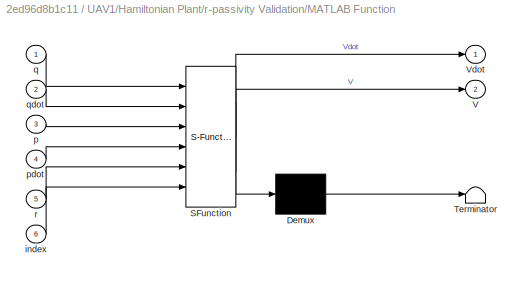
BLOCK [SubSystem] UAV1/Hamiltonian Plant/r-passivity Validation/MATLAB Function
  ErrorFcn = Stateflow.Translate.translate
  PermitHierarchicalResolution = ExplicitOnly
  Ports = [6, 2]
  RequestExecContextInheritance = off
  SFBlockType = MATLAB Function
  TreatAsAtomicUnit = on
BLOCK [Demux] UAV1/Hamiltonian Plant/r-passivity Validation/MATLAB Function/ Demux 
  Outputs = 1
  Ports = [1, 1]
BLOCK [S-Function] UAV1/Hamiltonian Plant/r-passivity Validation/MATLAB Function/ SFunction 
  EnableBusSupport = on
  FunctionName = sf_sfun
  PortCounts = [6 3]
  Ports = [6, 3]
  SFcnIsStateOwnerBlock = off
  SFunctionDeploymentMode = off
  Tag = Stateflow S-Function Model_3Systems 28
BLOCK [Terminator] UAV1/Hamiltonian Plant/r-passivity Validation/MATLAB Function/ Terminator 
BLOCK [Outport] UAV1/Hamiltonian Plant/r-passivity Validation/MATLAB Function/V
  IconDisplay = Port number
  Port = 2
BLOCK [Outport] UAV1/Hamiltonian Plant/r-passivity Validation/MATLAB Function/Vdot
  IconDisplay = Port number
BLOCK [Inport] UAV1/Hamiltonian Plant/r-passivity Validation/MATLAB Function/index
  IconDisplay = Port number
  Port = 6
BLOCK [Inport] UAV1/Hamiltonian Plant/r-passivity Validation/MATLAB Function/p
  IconDisplay = Port number
  Port = 3
BLOCK [Inport] UAV1/Hamiltonian Plant/r-passivity Validation/MATLAB Function/pdot
  IconDisplay = Port number
  Port = 4
BLOCK [Inport] UAV1/Hamiltonian Plant/r-passivity Validation/MATLAB Function/q
  IconDisplay = Port number
BLOCK [Inport] UAV1/Hamiltonian Plant/r-passivity Validation/MATLAB Function/qdot
  IconDisplay = Port number
  Port = 2
BLOCK [Inport] UAV1/Hamiltonian Plant/r-passivity Validation/MATLAB Function/r
  IconDisplay = Port number
  Port = 5
BLOCK [Outport] UAV1/Hamiltonian Plant/r-passivity Validation/S
  IconDisplay = Port number
  Port = 3
BLOCK [Outport] UAV1/Hamiltonian Plant/r-passivity Validation/S_Int
  IconDisplay = Port number
  Port = 6
BLOCK [Sum] UAV1/Hamiltonian Plant/r-passivity Validation/Sum2
  IconShape = round
  InputSameDT = off
  Inputs = +-|
  OutDataTypeStr = Inherit: Inherit via internal rule
  Ports = [2, 1]
  SaturateOnIntegerOverflow = off
BLOCK [Sum] UAV1/Hamiltonian Plant/r-passivity Validation/Sum4
  IconShape = round
  InputSameDT = off
  Inputs = +-|
  OutDataTypeStr = Inherit: Inherit via internal rule
  Ports = [2, 1]
  SaturateOnIntegerOverflow = off
BLOCK [Outport] UAV1/Hamiltonian Plant/r-passivity Validation/V
  IconDisplay = Port number
  Port = 4
BLOCK [Inport] UAV1/Hamiltonian Plant/r-passivity Validation/index
  IconDisplay = Port number
  Port = 5
BLOCK [Outport] UAV1/Hamiltonian Plant/r-passivity Validation/int_tau_r
  IconDisplay = Port number
  Port = 5
BLOCK [Inport] UAV1/Hamiltonian Plant/r-passivity Validation/p
  IconDisplay = Port number
  Port = 2
BLOCK [Inport] UAV1/Hamiltonian Plant/r-passivity Validation/pdot
  IconDisplay = Port number
  Port = 4
BLOCK [Inport] UAV1/Hamiltonian Plant/r-passivity Validation/q
  IconDisplay = Port number
BLOCK [Inport] UAV1/Hamiltonian Plant/r-passivity Validation/qdot
  IconDisplay = Port number
  Port = 3
BLOCK [Inport] UAV1/Hamiltonian Plant/r-passivity Validation/r
  IconDisplay = Port number
  Port = 7
BLOCK [Inport] UAV1/Hamiltonian Plant/r-passivity Validation/tau_c
  IconDisplay = Port number
  Port = 6
BLOCK [Outport] UAV1/Hamiltonian Plant/r-passivity Validation/tau_r
  IconDisplay = Port number
  Port = 2
BLOCK [Outport] UAV1/Hamiltonian Plant/r-passivity Validation/vdot
  IconDisplay = Port number
BLOCK [Inport] UAV1/Hamiltonian Plant/tau_c
  IconDisplay = Port number
  Port = 6
BLOCK [Inport] UAV1/Hamiltonian Plant/tau_c_hat
  IconDisplay = Port number
BLOCK [Inport] UAV1/Hamiltonian Plant/tau_l
  IconDisplay = Port number
  Port = 2
BLOCK [Scope] UAV1/Hamiltonian Plant/vdot + tau'r
  Floating = off
  NumInputPorts = 2
  Ports = [2]
  ScopeSpecificationString = Simulink.scopes.TimeScopeBlockCfg('CurrentConfiguration', extmgr.ConfigurationSet(extmgr.Configuration('Core','General UI',true),extmgr.Configuration('Core','Source UI',true),extmgr.Configuration('Sources','WiredSimulink',true,'DataLoggingVariableName','ScopeData3'),extmgr.Configuration('Visuals','Time Domain',true,'SerializedDisplays',{struct('MinYLimReal','-163.17397','MaxYLimReal','27.52284','Y...<+1541ch>
BLOCK [Outport] UAV1/Hamiltonian Plant/z
  IconDisplay = Port number
  Port = 4
BLOCK [SubSystem] UAV1/Levenberg Compensation
  Commented = on
  ErrorFcn = Stateflow.Translate.translate
  PermitHierarchicalResolution = ExplicitOnly
  Ports = [4, 1]
  RequestExecContextInheritance = off
  SFBlockType = MATLAB Function
  TreatAsAtomicUnit = on
BLOCK [Demux] UAV1/Levenberg Compensation/ Demux 
  Outputs = 1
  Ports = [1, 1]
BLOCK [S-Function] UAV1/Levenberg Compensation/ SFunction 
  EnableBusSupport = on
  FunctionName = sf_sfun
  PortCounts = [4 2]
  Ports = [4, 2]
  SFcnIsStateOwnerBlock = off
  SFunctionDeploymentMode = off
  Tag = Stateflow S-Function Model_3Systems 29
BLOCK [Terminator] UAV1/Levenberg Compensation/ Terminator 
BLOCK [Inport] UAV1/Levenberg Compensation/index
  IconDisplay = Port number
  Port = 4
BLOCK [Inport] UAV1/Levenberg Compensation/q
  IconDisplay = Port number
BLOCK [Outport] UAV1/Levenberg Compensation/tau_c
  IconDisplay = Port number
BLOCK [Inport] UAV1/Levenberg Compensation/tau_k
  IconDisplay = Port number
  Port = 2
BLOCK [Inport] UAV1/Levenberg Compensation/z_dot
  IconDisplay = Port number
  Port = 3
BLOCK [Scope] UAV1/Local Input
  Floating = off
  NumInputPorts = 1
  Ports = [1]
  ScopeSpecificationString = Simulink.scopes.TimeScopeBlockCfg('CurrentConfiguration', extmgr.ConfigurationSet(extmgr.Configuration('Core','General UI',true),extmgr.Configuration('Core','Source UI',true),extmgr.Configuration('Sources','WiredSimulink',true,'DataLoggingVariableName','ScopeData1'),extmgr.Configuration('Visuals','Time Domain',true,'SerializedDisplays',{struct('MinYLimReal','-18.54462','MaxYLimReal','8.69478','YLa...<+1464ch>
BLOCK [SubSystem] UAV1/MATLAB Function1
  ErrorFcn = Stateflow.Translate.translate
  PermitHierarchicalResolution = ExplicitOnly
  Ports = [3, 3]
  RequestExecContextInheritance = off
  SFBlockType = MATLAB Function
  TreatAsAtomicUnit = on
BLOCK [Demux] UAV1/MATLAB Function1/ Demux 
  Outputs = 1
  Ports = [1, 1]
BLOCK [S-Function] UAV1/MATLAB Function1/ SFunction 
  EnableBusSupport = on
  FunctionName = sf_sfun
  PortCounts = [3 4]
  Ports = [3, 4]
  SFcnIsStateOwnerBlock = off
  SFunctionDeploymentMode = off
  Tag = Stateflow S-Function Model_3Systems 30
BLOCK [Terminator] UAV1/MATLAB Function1/ Terminator 
BLOCK [Inport] UAV1/MATLAB Function1/index
  IconDisplay = Port number
  Port = 3
BLOCK [Outport] UAV1/MATLAB Function1/matching
  IconDisplay = Port number
  Port = 3
BLOCK [Inport] UAV1/MATLAB Function1/p
  IconDisplay = Port number
BLOCK [Inport] UAV1/MATLAB Function1/q
  IconDisplay = Port number
  Port = 2
BLOCK [Outport] UAV1/MATLAB Function1/tau
  IconDisplay = Port number
BLOCK [Outport] UAV1/MATLAB Function1/tau_fb
  IconDisplay = Port number
  Port = 2
BLOCK [Scope] UAV1/Matching
  Floating = off
  NumInputPorts = 1
  Ports = [1]
  ScopeSpecificationString = Simulink.scopes.TimeScopeBlockCfg('CurrentConfiguration', extmgr.ConfigurationSet(extmgr.Configuration('Core','General UI',true),extmgr.Configuration('Core','Source UI',true),extmgr.Configuration('Sources','WiredSimulink',true,'DataLoggingVariableName','ScopeData1'),extmgr.Configuration('Visuals','Time Domain',true,'SerializedDisplays',{struct('MinYLimReal','-8.11363','MaxYLimReal','1.19824','YLab...<+1414ch>
BLOCK [Scope] UAV1/Passivating Feedback
  Floating = off
  NumInputPorts = 1
  Ports = [1]
  ScopeSpecificationString = Simulink.scopes.TimeScopeBlockCfg('CurrentConfiguration', extmgr.ConfigurationSet(extmgr.Configuration('Core','General UI',true),extmgr.Configuration('Core','Source UI',true),extmgr.Configuration('Sources','WiredSimulink',true,'DataLoggingVariableName','ScopeData1'),extmgr.Configuration('Visuals','Time Domain',true,'SerializedDisplays',{struct('MinYLimReal','-2.09312','MaxYLimReal','3.52871','YLab...<+1441ch>
BLOCK [Outport] UAV1/S
  IconDisplay = Port number
  Port = 4
BLOCK [Sum] UAV1/Sum
  IconShape = round
  InputSameDT = off
  Inputs = |++
  OutDataTypeStr = Inherit: Inherit via internal rule
  Ports = [2, 1]
  SaturateOnIntegerOverflow = off
BLOCK [Scope] UAV1/System Input
  Floating = off
  NumInputPorts = 1
  Ports = [1]
  ScopeSpecificationString = Simulink.scopes.TimeScopeBlockCfg('CurrentConfiguration', extmgr.ConfigurationSet(extmgr.Configuration('Core','General UI',true),extmgr.Configuration('Core','Source UI',true),extmgr.Configuration('Sources','WiredSimulink',true,'DataLoggingVariableName','ScopeData1'),extmgr.Configuration('Visuals','Time Domain',true,'SerializedDisplays',{struct('MinYLimReal','-42.84743','MaxYLimReal','42.31595','YL...<+1444ch>
BLOCK [Inport] UAV1/index
  IconDisplay = Port number
  Port = 4
BLOCK [Inport] UAV1/p0
  IconDisplay = Port number
  Port = 3
BLOCK [Outport] UAV1/q
  IconDisplay = Port number
  Port = 2
BLOCK [Inport] UAV1/q0
  IconDisplay = Port number
  Port = 2
BLOCK [Outport] UAV1/r
  IconDisplay = Port number
  Port = 3
BLOCK [Inport] UAV1/tau_c
  IconDisplay = Port number
BLOCK [Outport] UAV1/z
  IconDisplay = Port number
ANNOTATION Correct Manipulator: Scopes
ANNOTATION Correct Manipulator1: Scopes
ANNOTATION Correct Manipulator2: Scopes
NET Constant1:1 -> Correct Manipulator2:4, Edge 1:3, Edge 3:3
LINE Constant2:1 -> Correct Manipulator2:2
LINE Constant3:1 -> Correct Manipulator2:3
LINE Constant4:1 -> Correct Manipulator1:2
LINE Constant5:1 -> Correct Manipulator1:3
NET Constant6:1 -> Correct Manipulator1:4, Edge 1:4, Edge 2:3
LINE Constant7:1 -> Correct Manipulator:2
LINE Constant8:1 -> Correct Manipulator:3
NET Constant9:1 -> Correct Manipulator:4, Edge 2:4, Edge 3:4
NET Correct Manipulator/Hamiltonian Plant/Integrator1:1 -> Correct Manipulator/Hamiltonian Plant/MATLAB Function1:2, Correct Manipulator/Hamiltonian Plant/MATLAB Function2:2, Correct Manipulator/Hamiltonian Plant/p:1
NET Correct Manipulator/Hamiltonian Plant/Integrator:1 -> Correct Manipulator/Hamiltonian Plant/MATLAB Function1:1, Correct Manipulator/Hamiltonian Plant/MATLAB Function2:1, Correct Manipulator/Hamiltonian Plant/q:1
LINE Correct Manipulator/Hamiltonian Plant/MATLAB Function1:1 -> Correct Manipulator/Hamiltonian Plant/z:1
LINE Correct Manipulator/Hamiltonian Plant/MATLAB Function1:2 -> Correct Manipulator/Hamiltonian Plant/r:1
LINE Correct Manipulator/Hamiltonian Plant/MATLAB Function2:1 -> Correct Manipulator/Hamiltonian Plant/Integrator:1
LINE Correct Manipulator/Hamiltonian Plant/MATLAB Function2:2 -> Correct Manipulator/Hamiltonian Plant/Integrator1:1
NET Correct Manipulator/Hamiltonian Plant/index:1 -> Correct Manipulator/Hamiltonian Plant/MATLAB Function1:3, Correct Manipulator/Hamiltonian Plant/MATLAB Function2:5
LINE Correct Manipulator/Hamiltonian Plant/p0:1 -> Correct Manipulator/Hamiltonian Plant/Integrator1:2
LINE Correct Manipulator/Hamiltonian Plant/q0:1 -> Correct Manipulator/Hamiltonian Plant/Integrator:2
LINE Correct Manipulator/Hamiltonian Plant/tau_c_hat:1 -> Correct Manipulator/Hamiltonian Plant/MATLAB Function2:4
LINE Correct Manipulator/Hamiltonian Plant/tau_l:1 -> Correct Manipulator/Hamiltonian Plant/MATLAB Function2:3
LINE Correct Manipulator/Hamiltonian Plant:1 -> Correct Manipulator/r:1
NET Correct Manipulator/Hamiltonian Plant:2 -> Correct Manipulator/MATLAB Function1:2, Correct Manipulator/q:1
LINE Correct Manipulator/Hamiltonian Plant:3 -> Correct Manipulator/MATLAB Function1:1
LINE Correct Manipulator/Hamiltonian Plant:4 -> Correct Manipulator/z:1
NET Correct Manipulator/MATLAB Function1:1 -> Correct Manipulator/Hamiltonian Plant:2, Correct Manipulator/Local Input:1
NET Correct Manipulator/MATLAB Function1:2 -> Correct Manipulator/Cooperative Input:1, Correct Manipulator/Hamiltonian Plant:1
NET Correct Manipulator/index:1 -> Correct Manipulator/Hamiltonian Plant:5, Correct Manipulator/MATLAB Function1:4
LINE Correct Manipulator/p0:1 -> Correct Manipulator/Hamiltonian Plant:4
LINE Correct Manipulator/q0:1 -> Correct Manipulator/Hamiltonian Plant:3
LINE Correct Manipulator/tau_c:1 -> Correct Manipulator/MATLAB Function1:3
NET Correct Manipulator1/Hamiltonian Plant/Integrator1:1 -> Correct Manipulator1/Hamiltonian Plant/MATLAB Function1:2, Correct Manipulator1/Hamiltonian Plant/MATLAB Function2:2, Correct Manipulator1/Hamiltonian Plant/p:1
NET Correct Manipulator1/Hamiltonian Plant/Integrator:1 -> Correct Manipulator1/Hamiltonian Plant/MATLAB Function1:1, Correct Manipulator1/Hamiltonian Plant/MATLAB Function2:1, Correct Manipulator1/Hamiltonian Plant/q:1
LINE Correct Manipulator1/Hamiltonian Plant/MATLAB Function1:1 -> Correct Manipulator1/Hamiltonian Plant/z:1
LINE Correct Manipulator1/Hamiltonian Plant/MATLAB Function1:2 -> Correct Manipulator1/Hamiltonian Plant/r:1
LINE Correct Manipulator1/Hamiltonian Plant/MATLAB Function2:1 -> Correct Manipulator1/Hamiltonian Plant/Integrator:1
LINE Correct Manipulator1/Hamiltonian Plant/MATLAB Function2:2 -> Correct Manipulator1/Hamiltonian Plant/Integrator1:1
NET Correct Manipulator1/Hamiltonian Plant/index:1 -> Correct Manipulator1/Hamiltonian Plant/MATLAB Function1:3, Correct Manipulator1/Hamiltonian Plant/MATLAB Function2:5
LINE Correct Manipulator1/Hamiltonian Plant/p0:1 -> Correct Manipulator1/Hamiltonian Plant/Integrator1:2
LINE Correct Manipulator1/Hamiltonian Plant/q0:1 -> Correct Manipulator1/Hamiltonian Plant/Integrator:2
LINE Correct Manipulator1/Hamiltonian Plant/tau_c_hat:1 -> Correct Manipulator1/Hamiltonian Plant/MATLAB Function2:4
LINE Correct Manipulator1/Hamiltonian Plant/tau_l:1 -> Correct Manipulator1/Hamiltonian Plant/MATLAB Function2:3
LINE Correct Manipulator1/Hamiltonian Plant:1 -> Correct Manipulator1/r:1
NET Correct Manipulator1/Hamiltonian Plant:2 -> Correct Manipulator1/MATLAB Function1:2, Correct Manipulator1/q:1
LINE Correct Manipulator1/Hamiltonian Plant:3 -> Correct Manipulator1/MATLAB Function1:1
LINE Correct Manipulator1/Hamiltonian Plant:4 -> Correct Manipulator1/z:1
NET Correct Manipulator1/MATLAB Function1:1 -> Correct Manipulator1/Hamiltonian Plant:2, Correct Manipulator1/Local Input:1
NET Correct Manipulator1/MATLAB Function1:2 -> Correct Manipulator1/Cooperative Input:1, Correct Manipulator1/Hamiltonian Plant:1
NET Correct Manipulator1/index:1 -> Correct Manipulator1/Hamiltonian Plant:5, Correct Manipulator1/MATLAB Function1:4
LINE Correct Manipulator1/p0:1 -> Correct Manipulator1/Hamiltonian Plant:4
LINE Correct Manipulator1/q0:1 -> Correct Manipulator1/Hamiltonian Plant:3
LINE Correct Manipulator1/tau_c:1 -> Correct Manipulator1/MATLAB Function1:3
LINE Correct Manipulator1:1 -> Demux1:1
LINE Correct Manipulator1:2 -> Mux:2
NET Correct Manipulator1:3 -> Edge 1:2, Edge 2:1
NET Correct Manipulator2/Hamiltonian Plant/Integrator1:1 -> Correct Manipulator2/Hamiltonian Plant/MATLAB Function1:2, Correct Manipulator2/Hamiltonian Plant/MATLAB Function2:2, Correct Manipulator2/Hamiltonian Plant/p:1
NET Correct Manipulator2/Hamiltonian Plant/Integrator:1 -> Correct Manipulator2/Hamiltonian Plant/MATLAB Function1:1, Correct Manipulator2/Hamiltonian Plant/MATLAB Function2:1, Correct Manipulator2/Hamiltonian Plant/q:1
LINE Correct Manipulator2/Hamiltonian Plant/MATLAB Function1:1 -> Correct Manipulator2/Hamiltonian Plant/z:1
LINE Correct Manipulator2/Hamiltonian Plant/MATLAB Function1:2 -> Correct Manipulator2/Hamiltonian Plant/r:1
LINE Correct Manipulator2/Hamiltonian Plant/MATLAB Function2:1 -> Correct Manipulator2/Hamiltonian Plant/Integrator:1
LINE Correct Manipulator2/Hamiltonian Plant/MATLAB Function2:2 -> Correct Manipulator2/Hamiltonian Plant/Integrator1:1
NET Correct Manipulator2/Hamiltonian Plant/index:1 -> Correct Manipulator2/Hamiltonian Plant/MATLAB Function1:3, Correct Manipulator2/Hamiltonian Plant/MATLAB Function2:5
LINE Correct Manipulator2/Hamiltonian Plant/p0:1 -> Correct Manipulator2/Hamiltonian Plant/Integrator1:2
LINE Correct Manipulator2/Hamiltonian Plant/q0:1 -> Correct Manipulator2/Hamiltonian Plant/Integrator:2
LINE Correct Manipulator2/Hamiltonian Plant/tau_c_hat:1 -> Correct Manipulator2/Hamiltonian Plant/MATLAB Function2:4
LINE Correct Manipulator2/Hamiltonian Plant/tau_l:1 -> Correct Manipulator2/Hamiltonian Plant/MATLAB Function2:3
LINE Correct Manipulator2/Hamiltonian Plant:1 -> Correct Manipulator2/r:1
NET Correct Manipulator2/Hamiltonian Plant:2 -> Correct Manipulator2/MATLAB Function1:2, Correct Manipulator2/q:1
LINE Correct Manipulator2/Hamiltonian Plant:3 -> Correct Manipulator2/MATLAB Function1:1
LINE Correct Manipulator2/Hamiltonian Plant:4 -> Correct Manipulator2/z:1
NET Correct Manipulator2/MATLAB Function1:1 -> Correct Manipulator2/Hamiltonian Plant:2, Correct Manipulator2/Local Input:1
NET Correct Manipulator2/MATLAB Function1:2 -> Correct Manipulator2/Cooperative Input:1, Correct Manipulator2/Hamiltonian Plant:1
NET Correct Manipulator2/index:1 -> Correct Manipulator2/Hamiltonian Plant:5, Correct Manipulator2/MATLAB Function1:4
LINE Correct Manipulator2/p0:1 -> Correct Manipulator2/Hamiltonian Plant:4
LINE Correct Manipulator2/q0:1 -> Correct Manipulator2/Hamiltonian Plant:3
LINE Correct Manipulator2/tau_c:1 -> Correct Manipulator2/MATLAB Function1:3
LINE Correct Manipulator2:1 -> Demux:1
LINE Correct Manipulator2:2 -> Mux:1
NET Correct Manipulator2:3 -> Edge 1:1, Edge 3:1
LINE Correct Manipulator:1 -> Demux2:1
LINE Correct Manipulator:2 -> Mux:3
NET Correct Manipulator:3 -> Edge 2:2, Edge 3:2
LINE Demux1:1 -> Mux1:2
LINE Demux1:2 -> Mux2:2
LINE Demux2:1 -> Mux1:3
LINE Demux2:2 -> Mux2:3
LINE Demux:1 -> Mux1:1
LINE Demux:2 -> Mux2:1
LINE Edge 1/Constant1:1 -> Edge 1/MATLAB Function:3
LINE Edge 1/Gain:1 -> Edge 1/Sum1:1
LINE Edge 1/Ground:1 -> Edge 1/Switch:3
NET Edge 1/MATLAB Function:1 -> Edge 1/Gain:1, Edge 1/Sum:2
LINE Edge 1/ST Gain/Demux:1 -> Edge 1/ST Gain/x_jsi:1
LINE Edge 1/ST Gain/Demux:2 -> Edge 1/ST Gain/s_ij+:1
LINE Edge 1/ST Gain/Gain:1 -> Edge 1/ST Gain/Demux:1
LINE Edge 1/ST Gain/Mux:1 -> Edge 1/ST Gain/Gain:1
LINE Edge 1/ST Gain/r_i:1 -> Edge 1/ST Gain/Mux:2
LINE Edge 1/ST Gain/s_ij-:1 -> Edge 1/ST Gain/Mux:1
LINE Edge 1/ST Gain1/Demux:1 -> Edge 1/ST Gain1/x_isj:1
LINE Edge 1/ST Gain1/Demux:2 -> Edge 1/ST Gain1/s_ji-:1
LINE Edge 1/ST Gain1/Gain:1 -> Edge 1/ST Gain1/Demux:1
LINE Edge 1/ST Gain1/Mux:1 -> Edge 1/ST Gain1/Gain:1
LINE Edge 1/ST Gain1/r_j:1 -> Edge 1/ST Gain1/Mux:2
LINE Edge 1/ST Gain1/s_ji+:1 -> Edge 1/ST Gain1/Mux:1
LINE Edge 1/ST Gain1:1 -> Edge 1/tau_ji:1
LINE Edge 1/ST Gain1:2 -> Edge 1/T21:1
LINE Edge 1/ST Gain:1 -> Edge 1/tau_ij:1
NET Edge 1/ST Gain:2 -> Edge 1/Scope:1, Edge 1/T12:1
LINE Edge 1/Step:1 -> Edge 1/Switch:2
LINE Edge 1/Sum1:1 -> Edge 1/ST Gain1:1
LINE Edge 1/Sum:1 -> Edge 1/ST Gain:1
NET Edge 1/T12:1 -> Edge 1/ST Gain1:2, Edge 1/Scope1:1
LINE Edge 1/T21:1 -> Edge 1/ST Gain:2
LINE Edge 1/index_i:1 -> Edge 1/MATLAB Function:1
LINE Edge 1/index_j:1 -> Edge 1/MATLAB Function:2
LINE Edge 1/r_i:1 -> Edge 1/Sum:1
LINE Edge 1/r_j:1 -> Edge 1/Sum1:2
LINE Edge 1:1 -> Sum1:1
LINE Edge 1:2 -> Sum:1
LINE Edge 2/Constant1:1 -> Edge 2/MATLAB Function:3
LINE Edge 2/Gain:1 -> Edge 2/Sum1:1
LINE Edge 2/Ground:1 -> Edge 2/Switch:3
NET Edge 2/MATLAB Function:1 -> Edge 2/Gain:1, Edge 2/Sum:2
LINE Edge 2/ST Gain/Demux:1 -> Edge 2/ST Gain/x_jsi:1
LINE Edge 2/ST Gain/Demux:2 -> Edge 2/ST Gain/s_ij+:1
LINE Edge 2/ST Gain/Gain:1 -> Edge 2/ST Gain/Demux:1
LINE Edge 2/ST Gain/Mux:1 -> Edge 2/ST Gain/Gain:1
LINE Edge 2/ST Gain/r_i:1 -> Edge 2/ST Gain/Mux:2
LINE Edge 2/ST Gain/s_ij-:1 -> Edge 2/ST Gain/Mux:1
LINE Edge 2/ST Gain1/Demux:1 -> Edge 2/ST Gain1/x_isj:1
LINE Edge 2/ST Gain1/Demux:2 -> Edge 2/ST Gain1/s_ji-:1
LINE Edge 2/ST Gain1/Gain:1 -> Edge 2/ST Gain1/Demux:1
LINE Edge 2/ST Gain1/Mux:1 -> Edge 2/ST Gain1/Gain:1
LINE Edge 2/ST Gain1/r_j:1 -> Edge 2/ST Gain1/Mux:2
LINE Edge 2/ST Gain1/s_ji+:1 -> Edge 2/ST Gain1/Mux:1
LINE Edge 2/ST Gain1:1 -> Edge 2/tau_ji:1
LINE Edge 2/ST Gain1:2 -> Edge 2/T21:1
LINE Edge 2/ST Gain:1 -> Edge 2/tau_ij:1
LINE Edge 2/ST Gain:2 -> Edge 2/T12:1
LINE Edge 2/Step:1 -> Edge 2/Switch:2
LINE Edge 2/Sum1:1 -> Edge 2/ST Gain1:1
LINE Edge 2/Sum:1 -> Edge 2/ST Gain:1
LINE Edge 2/T12:1 -> Edge 2/ST Gain1:2
LINE Edge 2/T21:1 -> Edge 2/ST Gain:2
LINE Edge 2/index_i:1 -> Edge 2/MATLAB Function:1
LINE Edge 2/index_j:1 -> Edge 2/MATLAB Function:2
LINE Edge 2/r_i:1 -> Edge 2/Sum:1
LINE Edge 2/r_j:1 -> Edge 2/Sum1:2
LINE Edge 2:1 -> Sum:2
LINE Edge 2:2 -> Sum2:2
LINE Edge 3/Constant1:1 -> Edge 3/MATLAB Function:3
LINE Edge 3/Gain:1 -> Edge 3/Sum1:1
LINE Edge 3/Ground:1 -> Edge 3/Switch:3
NET Edge 3/MATLAB Function:1 -> Edge 3/Gain:1, Edge 3/Sum:2
LINE Edge 3/ST Gain/Demux:1 -> Edge 3/ST Gain/x_jsi:1
LINE Edge 3/ST Gain/Demux:2 -> Edge 3/ST Gain/s_ij+:1
LINE Edge 3/ST Gain/Gain:1 -> Edge 3/ST Gain/Demux:1
LINE Edge 3/ST Gain/Mux:1 -> Edge 3/ST Gain/Gain:1
LINE Edge 3/ST Gain/r_i:1 -> Edge 3/ST Gain/Mux:2
LINE Edge 3/ST Gain/s_ij-:1 -> Edge 3/ST Gain/Mux:1
LINE Edge 3/ST Gain1/Demux:1 -> Edge 3/ST Gain1/x_isj:1
LINE Edge 3/ST Gain1/Demux:2 -> Edge 3/ST Gain1/s_ji-:1
LINE Edge 3/ST Gain1/Gain:1 -> Edge 3/ST Gain1/Demux:1
LINE Edge 3/ST Gain1/Mux:1 -> Edge 3/ST Gain1/Gain:1
LINE Edge 3/ST Gain1/r_j:1 -> Edge 3/ST Gain1/Mux:2
LINE Edge 3/ST Gain1/s_ji+:1 -> Edge 3/ST Gain1/Mux:1
LINE Edge 3/ST Gain1:1 -> Edge 3/tau_ji:1
LINE Edge 3/ST Gain1:2 -> Edge 3/T21:1
LINE Edge 3/ST Gain:1 -> Edge 3/tau_ij:1
LINE Edge 3/ST Gain:2 -> Edge 3/T12:1
LINE Edge 3/Step:1 -> Edge 3/Switch:2
LINE Edge 3/Sum1:1 -> Edge 3/ST Gain1:1
LINE Edge 3/Sum:1 -> Edge 3/ST Gain:1
LINE Edge 3/T12:1 -> Edge 3/ST Gain1:2
LINE Edge 3/T21:1 -> Edge 3/ST Gain:2
LINE Edge 3/index_i:1 -> Edge 3/MATLAB Function:1
LINE Edge 3/index_j:1 -> Edge 3/MATLAB Function:2
LINE Edge 3/r_i:1 -> Edge 3/Sum:1
LINE Edge 3/r_j:1 -> Edge 3/Sum1:2
LINE Edge 3:1 -> Sum1:2
LINE Edge 3:2 -> Sum2:1
LINE Manipulator/Gain:1 -> Manipulator/Sum1:2
LINE Manipulator/Hamiltonian Plant/Dot Product:1 -> Manipulator/Hamiltonian Plant/Integrator2:1
NET Manipulator/Hamiltonian Plant/Integrator1:1 -> Manipulator/Hamiltonian Plant/MATLAB Function1:2, Manipulator/Hamiltonian Plant/MATLAB Function2:2, Manipulator/Hamiltonian Plant/p:1
NET Manipulator/Hamiltonian Plant/Integrator2:1 -> Manipulator/Hamiltonian Plant/Scope1:1, Manipulator/Hamiltonian Plant/Sum:1
NET Manipulator/Hamiltonian Plant/Integrator:1 -> Manipulator/Hamiltonian Plant/MATLAB Function1:1, Manipulator/Hamiltonian Plant/MATLAB Function2:1, Manipulator/Hamiltonian Plant/MATLAB Function:1, Manipulator/Hamiltonian Plant/q:1
LINE Manipulator/Hamiltonian Plant/MATLAB Function1:1 -> Manipulator/Hamiltonian Plant/z:1
NET Manipulator/Hamiltonian Plant/MATLAB Function1:2 -> Manipulator/Hamiltonian Plant/Dot Product:2, Manipulator/Hamiltonian Plant/MATLAB Function:2, Manipulator/Hamiltonian Plant/r:1
LINE Manipulator/Hamiltonian Plant/MATLAB Function1:3 -> Manipulator/Hamiltonian Plant/y_d:1
LINE Manipulator/Hamiltonian Plant/MATLAB Function2:1 -> Manipulator/Hamiltonian Plant/Integrator:1
LINE Manipulator/Hamiltonian Plant/MATLAB Function2:2 -> Manipulator/Hamiltonian Plant/Integrator1:1
NET Manipulator/Hamiltonian Plant/MATLAB Function:1 -> Manipulator/Hamiltonian Plant/Scope1:2, Manipulator/Hamiltonian Plant/Sum:2
LINE Manipulator/Hamiltonian Plant/Sum:1 -> Manipulator/Hamiltonian Plant/Scope:1
NET Manipulator/Hamiltonian Plant/index:1 -> Manipulator/Hamiltonian Plant/MATLAB Function1:3, Manipulator/Hamiltonian Plant/MATLAB Function2:5, Manipulator/Hamiltonian Plant/MATLAB Function:3
LINE Manipulator/Hamiltonian Plant/p0:1 -> Manipulator/Hamiltonian Plant/Integrator1:2
LINE Manipulator/Hamiltonian Plant/q0:1 -> Manipulator/Hamiltonian Plant/Integrator:2
NET Manipulator/Hamiltonian Plant/tau_c:1 -> Manipulator/Hamiltonian Plant/Dot Product:1, Manipulator/Hamiltonian Plant/MATLAB Function2:4
LINE Manipulator/Hamiltonian Plant/tau_l:1 -> Manipulator/Hamiltonian Plant/MATLAB Function2:3
LINE Manipulator/Hamiltonian Plant:1 -> Manipulator/r:1
NET Manipulator/Hamiltonian Plant:2 -> Manipulator/MATLAB Function1:2, Manipulator/q:1
LINE Manipulator/Hamiltonian Plant:3 -> Manipulator/MATLAB Function1:1
LINE Manipulator/Hamiltonian Plant:4 -> Manipulator/z:1
LINE Manipulator/Hamiltonian Plant:5 -> Manipulator/Gain:1
LINE Manipulator/MATLAB Function1:1 -> Manipulator/Hamiltonian Plant:2
NET Manipulator/MATLAB Function1:2 -> Manipulator/Scope:1, Manipulator/Sum:2
LINE Manipulator/Sum1:1 -> Manipulator/Hamiltonian Plant:1
LINE Manipulator/Sum:1 -> Manipulator/Sum1:1
NET Manipulator/index:1 -> Manipulator/Hamiltonian Plant:5, Manipulator/MATLAB Function1:3
LINE Manipulator/p0:1 -> Manipulator/Hamiltonian Plant:4
LINE Manipulator/q0:1 -> Manipulator/Hamiltonian Plant:3
LINE Manipulator/tau_c:1 -> Manipulator/Sum:1
LINE Manipulator2/Hamiltonian Plant/Dot Product:1 -> Manipulator2/Hamiltonian Plant/Integrator2:1
NET Manipulator2/Hamiltonian Plant/Integrator1:1 -> Manipulator2/Hamiltonian Plant/MATLAB Function1:2, Manipulator2/Hamiltonian Plant/MATLAB Function2:2, Manipulator2/Hamiltonian Plant/p:1
NET Manipulator2/Hamiltonian Plant/Integrator2:1 -> Manipulator2/Hamiltonian Plant/Scope1:1, Manipulator2/Hamiltonian Plant/Sum:1
NET Manipulator2/Hamiltonian Plant/Integrator:1 -> Manipulator2/Hamiltonian Plant/MATLAB Function1:1, Manipulator2/Hamiltonian Plant/MATLAB Function2:1, Manipulator2/Hamiltonian Plant/MATLAB Function:1, Manipulator2/Hamiltonian Plant/q:1
LINE Manipulator2/Hamiltonian Plant/MATLAB Function1:1 -> Manipulator2/Hamiltonian Plant/z:1
NET Manipulator2/Hamiltonian Plant/MATLAB Function1:2 -> Manipulator2/Hamiltonian Plant/Dot Product:2, Manipulator2/Hamiltonian Plant/MATLAB Function:2, Manipulator2/Hamiltonian Plant/r:1
LINE Manipulator2/Hamiltonian Plant/MATLAB Function2:1 -> Manipulator2/Hamiltonian Plant/Integrator:1
LINE Manipulator2/Hamiltonian Plant/MATLAB Function2:2 -> Manipulator2/Hamiltonian Plant/Integrator1:1
NET Manipulator2/Hamiltonian Plant/MATLAB Function:1 -> Manipulator2/Hamiltonian Plant/Scope1:2, Manipulator2/Hamiltonian Plant/Sum:2
LINE Manipulator2/Hamiltonian Plant/Sum:1 -> Manipulator2/Hamiltonian Plant/Scope:1
NET Manipulator2/Hamiltonian Plant/index:1 -> Manipulator2/Hamiltonian Plant/MATLAB Function1:3, Manipulator2/Hamiltonian Plant/MATLAB Function2:5, Manipulator2/Hamiltonian Plant/MATLAB Function:3
LINE Manipulator2/Hamiltonian Plant/p0:1 -> Manipulator2/Hamiltonian Plant/Integrator1:2
LINE Manipulator2/Hamiltonian Plant/q0:1 -> Manipulator2/Hamiltonian Plant/Integrator:2
NET Manipulator2/Hamiltonian Plant/tau_c:1 -> Manipulator2/Hamiltonian Plant/Dot Product:1, Manipulator2/Hamiltonian Plant/MATLAB Function2:4
LINE Manipulator2/Hamiltonian Plant/tau_l:1 -> Manipulator2/Hamiltonian Plant/MATLAB Function2:3
LINE Manipulator2/Hamiltonian Plant:1 -> Manipulator2/r:1
NET Manipulator2/Hamiltonian Plant:2 -> Manipulator2/MATLAB Function1:2, Manipulator2/q:1
LINE Manipulator2/Hamiltonian Plant:3 -> Manipulator2/MATLAB Function1:1
LINE Manipulator2/Hamiltonian Plant:4 -> Manipulator2/z:1
LINE Manipulator2/MATLAB Function1:1 -> Manipulator2/Hamiltonian Plant:2
NET Manipulator2/MATLAB Function1:2 -> Manipulator2/Scope:1, Manipulator2/Sum:2
LINE Manipulator2/Sum:1 -> Manipulator2/Hamiltonian Plant:1
NET Manipulator2/index:1 -> Manipulator2/Hamiltonian Plant:5, Manipulator2/MATLAB Function1:3
LINE Manipulator2/p0:1 -> Manipulator2/Hamiltonian Plant:4
LINE Manipulator2/q0:1 -> Manipulator2/Hamiltonian Plant:3
LINE Manipulator2/tau_c:1 -> Manipulator2/Sum:1
NET Mux1:1 -> Cooperative:1, To Workspace1:1
NET Mux2:1 -> Cooperative:2, To Workspace2:1
NET Mux:1 -> Coordinates:1, To Workspace:1
LINE Point Mass/Hamiltonian Plant/Dot Product:1 -> Point Mass/Hamiltonian Plant/Integrator2:1
NET Point Mass/Hamiltonian Plant/Integrator1:1 -> Point Mass/Hamiltonian Plant/MATLAB Function1:2, Point Mass/Hamiltonian Plant/MATLAB Function2:2, Point Mass/Hamiltonian Plant/p:1
NET Point Mass/Hamiltonian Plant/Integrator2:1 -> Point Mass/Hamiltonian Plant/Scope1:1, Point Mass/Hamiltonian Plant/Sum:1
NET Point Mass/Hamiltonian Plant/Integrator:1 -> Point Mass/Hamiltonian Plant/MATLAB Function1:1, Point Mass/Hamiltonian Plant/MATLAB Function2:1, Point Mass/Hamiltonian Plant/q:1
LINE Point Mass/Hamiltonian Plant/MATLAB Function1:1 -> Point Mass/Hamiltonian Plant/z:1
LINE Point Mass/Hamiltonian Plant/MATLAB Function1:2 -> Point Mass/Hamiltonian Plant/r:1
LINE Point Mass/Hamiltonian Plant/MATLAB Function2:1 -> Point Mass/Hamiltonian Plant/Integrator:1
LINE Point Mass/Hamiltonian Plant/MATLAB Function2:2 -> Point Mass/Hamiltonian Plant/Integrator1:1
NET Point Mass/Hamiltonian Plant/MATLAB Function:1 -> Point Mass/Hamiltonian Plant/Scope1:2, Point Mass/Hamiltonian Plant/Sum:2
LINE Point Mass/Hamiltonian Plant/Sum:1 -> Point Mass/Hamiltonian Plant/Scope:1
LINE Point Mass/Hamiltonian Plant/p0:1 -> Point Mass/Hamiltonian Plant/Integrator1:2
LINE Point Mass/Hamiltonian Plant/q0:1 -> Point Mass/Hamiltonian Plant/Integrator:2
LINE Point Mass/Hamiltonian Plant/tau_c:1 -> Point Mass/Hamiltonian Plant/MATLAB Function2:4
LINE Point Mass/Hamiltonian Plant/tau_l:1 -> Point Mass/Hamiltonian Plant/MATLAB Function2:3
LINE Point Mass/Hamiltonian Plant:1 -> Point Mass/r:1
NET Point Mass/Hamiltonian Plant:2 -> Point Mass/MATLAB Function1:2, Point Mass/q:1
NET Point Mass/Hamiltonian Plant:3 -> Point Mass/MATLAB Function1:1, Point Mass/p:1
LINE Point Mass/Hamiltonian Plant:4 -> Point Mass/z:1
LINE Point Mass/MATLAB Function1:1 -> Point Mass/Hamiltonian Plant:2
NET Point Mass/MATLAB Function1:2 -> Point Mass/Scope:1, Point Mass/Sum:2
LINE Point Mass/Sum:1 -> Point Mass/Hamiltonian Plant:1
LINE Point Mass/p0:1 -> Point Mass/Hamiltonian Plant:4
LINE Point Mass/q0:1 -> Point Mass/Hamiltonian Plant:3
LINE Point Mass/tau_c:1 -> Point Mass/Sum:1
NET Sum1:1 -> Correct Manipulator2:1, Scope1:1
NET Sum2:1 -> Correct Manipulator:1, Scope2:1
NET Sum:1 -> Correct Manipulator1:1, Scope:1
LINE UAV/Hamiltonian Plant/Dot Product:1 -> UAV/Hamiltonian Plant/Integrator2:1
NET UAV/Hamiltonian Plant/Integrator1:1 -> UAV/Hamiltonian Plant/MATLAB Function1:2, UAV/Hamiltonian Plant/MATLAB Function2:2, UAV/Hamiltonian Plant/p:1
NET UAV/Hamiltonian Plant/Integrator2:1 -> UAV/Hamiltonian Plant/Scope1:1, UAV/Hamiltonian Plant/Sum:1
NET UAV/Hamiltonian Plant/Integrator:1 -> UAV/Hamiltonian Plant/MATLAB Function1:1, UAV/Hamiltonian Plant/MATLAB Function2:1, UAV/Hamiltonian Plant/MATLAB Function:1, UAV/Hamiltonian Plant/q:1
LINE UAV/Hamiltonian Plant/MATLAB Function1:1 -> UAV/Hamiltonian Plant/z:1
NET UAV/Hamiltonian Plant/MATLAB Function1:2 -> UAV/Hamiltonian Plant/Dot Product:2, UAV/Hamiltonian Plant/MATLAB Function:2, UAV/Hamiltonian Plant/r:1
LINE UAV/Hamiltonian Plant/MATLAB Function2:1 -> UAV/Hamiltonian Plant/Integrator:1
LINE UAV/Hamiltonian Plant/MATLAB Function2:2 -> UAV/Hamiltonian Plant/Integrator1:1
NET UAV/Hamiltonian Plant/MATLAB Function:1 -> UAV/Hamiltonian Plant/Scope1:2, UAV/Hamiltonian Plant/Sum:2
LINE UAV/Hamiltonian Plant/Sum:1 -> UAV/Hamiltonian Plant/Scope:1
NET UAV/Hamiltonian Plant/index:1 -> UAV/Hamiltonian Plant/MATLAB Function1:3, UAV/Hamiltonian Plant/MATLAB Function2:5, UAV/Hamiltonian Plant/MATLAB Function:3
LINE UAV/Hamiltonian Plant/p0:1 -> UAV/Hamiltonian Plant/Integrator1:2
LINE UAV/Hamiltonian Plant/q0:1 -> UAV/Hamiltonian Plant/Integrator:2
NET UAV/Hamiltonian Plant/tau_c:1 -> UAV/Hamiltonian Plant/Dot Product:1, UAV/Hamiltonian Plant/MATLAB Function2:4
LINE UAV/Hamiltonian Plant/tau_l:1 -> UAV/Hamiltonian Plant/MATLAB Function2:3
LINE UAV/Hamiltonian Plant:1 -> UAV/r:1
NET UAV/Hamiltonian Plant:2 -> UAV/MATLAB Function1:2, UAV/q:1
LINE UAV/Hamiltonian Plant:3 -> UAV/MATLAB Function1:1
LINE UAV/Hamiltonian Plant:4 -> UAV/z:1
LINE UAV/MATLAB Function1:1 -> UAV/Hamiltonian Plant:2
NET UAV/MATLAB Function1:2 -> UAV/Scope:1, UAV/Sum:2
LINE UAV/Sum:1 -> UAV/Hamiltonian Plant:1
NET UAV/index:1 -> UAV/Hamiltonian Plant:5, UAV/MATLAB Function1:3
LINE UAV/p0:1 -> UAV/Hamiltonian Plant:4
LINE UAV/q0:1 -> UAV/Hamiltonian Plant:3
LINE UAV/tau_c:1 -> UAV/Sum:1
NET UAV1/Hamiltonian Plant/Integrator1:1 -> UAV1/Hamiltonian Plant/MATLAB Function1:2, UAV1/Hamiltonian Plant/MATLAB Function2:2, UAV1/Hamiltonian Plant/p:1, UAV1/Hamiltonian Plant/r-passivity Validation:2
NET UAV1/Hamiltonian Plant/Integrator:1 -> UAV1/Hamiltonian Plant/MATLAB Function1:1, UAV1/Hamiltonian Plant/MATLAB Function2:1, UAV1/Hamiltonian Plant/q:1, UAV1/Hamiltonian Plant/r-passivity Validation:1
LINE UAV1/Hamiltonian Plant/MATLAB Function1:1 -> UAV1/Hamiltonian Plant/z:1
NET UAV1/Hamiltonian Plant/MATLAB Function1:2 -> UAV1/Hamiltonian Plant/r-passivity Validation:7, UAV1/Hamiltonian Plant/r:1
NET UAV1/Hamiltonian Plant/MATLAB Function2:1 -> UAV1/Hamiltonian Plant/Integrator:1, UAV1/Hamiltonian Plant/r-passivity Validation:3
NET UAV1/Hamiltonian Plant/MATLAB Function2:2 -> UAV1/Hamiltonian Plant/Integrator1:1, UAV1/Hamiltonian Plant/r-passivity Validation:4
NET UAV1/Hamiltonian Plant/index:1 -> UAV1/Hamiltonian Plant/MATLAB Function1:3, UAV1/Hamiltonian Plant/MATLAB Function2:5, UAV1/Hamiltonian Plant/r-passivity Validation:5
LINE UAV1/Hamiltonian Plant/p0:1 -> UAV1/Hamiltonian Plant/Integrator1:2
LINE UAV1/Hamiltonian Plant/q0:1 -> UAV1/Hamiltonian Plant/Integrator:2
NET UAV1/Hamiltonian Plant/r-passivity Validation/Dot Product:1 -> UAV1/Hamiltonian Plant/r-passivity Validation/Integrator2:1, UAV1/Hamiltonian Plant/r-passivity Validation/Sum4:1, UAV1/Hamiltonian Plant/r-passivity Validation/tau_r:1
NET UAV1/Hamiltonian Plant/r-passivity Validation/Integrator2:1 -> UAV1/Hamiltonian Plant/r-passivity Validation/Sum2:1, UAV1/Hamiltonian Plant/r-passivity Validation/int_tau_r:1
NET UAV1/Hamiltonian Plant/r-passivity Validation/MATLAB Function:1 -> UAV1/Hamiltonian Plant/r-passivity Validation/Sum4:2, UAV1/Hamiltonian Plant/r-passivity Validation/vdot:1
NET UAV1/Hamiltonian Plant/r-passivity Validation/MATLAB Function:2 -> UAV1/Hamiltonian Plant/r-passivity Validation/Sum2:2, UAV1/Hamiltonian Plant/r-passivity Validation/V:1
LINE UAV1/Hamiltonian Plant/r-passivity Validation/Sum2:1 -> UAV1/Hamiltonian Plant/r-passivity Validation/S_Int:1
LINE UAV1/Hamiltonian Plant/r-passivity Validation/Sum4:1 -> UAV1/Hamiltonian Plant/r-passivity Validation/S:1
LINE UAV1/Hamiltonian Plant/r-passivity Validation/index:1 -> UAV1/Hamiltonian Plant/r-passivity Validation/MATLAB Function:6
LINE UAV1/Hamiltonian Plant/r-passivity Validation/p:1 -> UAV1/Hamiltonian Plant/r-passivity Validation/MATLAB Function:3
LINE UAV1/Hamiltonian Plant/r-passivity Validation/pdot:1 -> UAV1/Hamiltonian Plant/r-passivity Validation/MATLAB Function:4
LINE UAV1/Hamiltonian Plant/r-passivity Validation/q:1 -> UAV1/Hamiltonian Plant/r-passivity Validation/MATLAB Function:1
LINE UAV1/Hamiltonian Plant/r-passivity Validation/qdot:1 -> UAV1/Hamiltonian Plant/r-passivity Validation/MATLAB Function:2
NET UAV1/Hamiltonian Plant/r-passivity Validation/r:1 -> UAV1/Hamiltonian Plant/r-passivity Validation/Dot Product:2, UAV1/Hamiltonian Plant/r-passivity Validation/MATLAB Function:5
LINE UAV1/Hamiltonian Plant/r-passivity Validation/tau_c:1 -> UAV1/Hamiltonian Plant/r-passivity Validation/Dot Product:1
LINE UAV1/Hamiltonian Plant/r-passivity Validation:1 -> UAV1/Hamiltonian Plant/vdot + tau'r:1
LINE UAV1/Hamiltonian Plant/r-passivity Validation:2 -> UAV1/Hamiltonian Plant/vdot + tau'r:2
NET UAV1/Hamiltonian Plant/r-passivity Validation:3 -> UAV1/Hamiltonian Plant/S Scope:1, UAV1/Hamiltonian Plant/S:1
LINE UAV1/Hamiltonian Plant/r-passivity Validation:4 -> UAV1/Hamiltonian Plant/Integral Vdot + tau'r:1
LINE UAV1/Hamiltonian Plant/r-passivity Validation:5 -> UAV1/Hamiltonian Plant/Integral Vdot + tau'r:2
LINE UAV1/Hamiltonian Plant/r-passivity Validation:6 -> UAV1/Hamiltonian Plant/S_Int:1
LINE UAV1/Hamiltonian Plant/tau_c:1 -> UAV1/Hamiltonian Plant/r-passivity Validation:6
LINE UAV1/Hamiltonian Plant/tau_c_hat:1 -> UAV1/Hamiltonian Plant/MATLAB Function2:4
LINE UAV1/Hamiltonian Plant/tau_l:1 -> UAV1/Hamiltonian Plant/MATLAB Function2:3
LINE UAV1/Hamiltonian Plant:1 -> UAV1/r:1
NET UAV1/Hamiltonian Plant:2 -> UAV1/MATLAB Function1:2, UAV1/q:1
LINE UAV1/Hamiltonian Plant:3 -> UAV1/MATLAB Function1:1
LINE UAV1/Hamiltonian Plant:4 -> UAV1/z:1
LINE UAV1/Hamiltonian Plant:5 -> UAV1/S:1
NET UAV1/MATLAB Function1:1 -> UAV1/Hamiltonian Plant:2, UAV1/Local Input:1
NET UAV1/MATLAB Function1:2 -> UAV1/Passivating Feedback:1, UAV1/Sum:2
LINE UAV1/MATLAB Function1:3 -> UAV1/Matching:1
NET UAV1/Sum:1 -> UAV1/Hamiltonian Plant:1, UAV1/System Input:1
NET UAV1/index:1 -> UAV1/Hamiltonian Plant:5, UAV1/MATLAB Function1:3
LINE UAV1/p0:1 -> UAV1/Hamiltonian Plant:4
LINE UAV1/q0:1 -> UAV1/Hamiltonian Plant:3
NET UAV1/tau_c:1 -> UAV1/Hamiltonian Plant:6, UAV1/Sum:1
note: NET lines group one-source signal fan-out (src -> all destinations, sorted); 1:1 wires keep LINE
CHART Point Mass/Hamiltonian Plant/MATLAB Function states=1 transitions=1
  STATE_LABEL 'eML_blk_kernel()'
  STATE_LABEL "SCRIPT:\nfunction V = fcn(q, r, Vr0)\n\n    coder.extrinsic('R_Validation');\n    V = 0;\n    [V] = R_Validation(q, r);\n    V = V - Vr0;\nend"
CHART Point Mass/Hamiltonian Plant/MATLAB Function1 states=1 transitions=1
  STATE_LABEL 'eML_blk_kernel()'
  STATE_LABEL "SCRIPT:\nfunction [z, r] = toz(q, p)\n\n    coder.extrinsic('Pointmass2D_z');\n    z = zeros(2, 1);\n    r = zeros(2, 1);    \n    [z, r] = Pointmass2D_z(q, p);\n"
CHART Edge 1/MATLAB Function states=1 transitions=1
  STATE_LABEL 'eML_blk_kernel()'
  STATE_LABEL 'SCRIPT:\nfunction r_ij = get_rij(i, j, R)\n    %r_ij = zeros(2,1);\n    r_ij = [R((i - 1)*2 + 1, j);R(2*i, j)];\nend\n'
CHART Edge 2/MATLAB Function states=1 transitions=1
  STATE_LABEL 'eML_blk_kernel()'
  STATE_LABEL 'SCRIPT:\nfunction r_ij = get_rij(i, j, R)\n    %r_ij = zeros(2,1);\n    r_ij = [R((i - 1)*2 + 1, j);R(2*i, j)];\nend'
CHART Correct
Manipulator1/Hamiltonian Plant/MATLAB Function1 states=1 transitions=1
  STATE_LABEL 'eML_blk_kernel()'
  STATE_LABEL "SCRIPT:\nfunction [z, r] = toz(q, p, index)\n\n    coder.extrinsic('Manipulator_z');\n    z = zeros(2, 1);\n    r = zeros(2, 1);\n    [z, r] = Manipulator_z(q, p, index);\n"
CHART Correct
Manipulator1/Hamiltonian Plant/MATLAB Function2 states=1 transitions=1
  STATE_LABEL 'eML_blk_kernel()'
  STATE_LABEL "SCRIPT:\nfunction [qdot, pdot] = fcn(q, p, tau_l, tau_c, index)\n\n    coder.extrinsic('Manipulator_Dynamics');\n    qdot = zeros(3, 1);\n    pdot = zeros(3, 1);\n    [qdot, pdot] = Manipulator_Dynamics(q, p, tau_l, tau_c, index);\n"  <repeated x5 — deduplicated; at blocks: Correct, MATLAB Function2>
CHART Correct
Manipulator1/MATLAB Function1 states=1 transitions=1
  STATE_LABEL 'eML_blk_kernel()'
  STATE_LABEL "SCRIPT:\nfunction [tau, tau_fb] = LocalControl(p, q, tau_c, index)\n    \n\ncoder.extrinsic('Manipulator_Control');\ntau = zeros(3, 1);\ntau_fb = zeros(2, 1);\n[tau, tau_m, tau_fb] = Manipulator_Control(q, p, tau_c, index);\n\n"  <repeated x3 — deduplicated; at blocks: Correct>
CHART Correct
Manipulator2/Hamiltonian Plant/MATLAB Function1 states=1 transitions=1
  STATE_LABEL 'eML_blk_kernel()'
  STATE_LABEL "SCRIPT:\nfunction [z, r] = toz(q, p, index)\n\n    coder.extrinsic('Manipulator_z');\n    z = zeros(2, 1);\n    r = zeros(2, 1);\n    [z, r] = Manipulator_z(q, p, index);\n"
CHART UAV/Hamiltonian Plant/MATLAB Function states=1 transitions=1
  STATE_LABEL 'eML_blk_kernel()'
  STATE_LABEL "SCRIPT:\nfunction V = fcn(q, r, index, Vr0)\n\n%     coder.extrinsic('R_Validation');\n%     V = 0;\n%     [V] = R_Validation(q, r, index);\n%     V = V - Vr0;\nV = 0;\nend"
CHART UAV/Hamiltonian Plant/MATLAB Function1 states=1 transitions=1
  STATE_LABEL 'eML_blk_kernel()'
  STATE_LABEL "SCRIPT:\nfunction [z, r] = toz(q, p, index)\n\n    coder.extrinsic('UAV_z');\n    z = zeros(2, 1);\n    r = zeros(2, 1);    \n    [z, r] = UAV_z(q, p, index);\n"
CHART UAV/Hamiltonian Plant/MATLAB Function2 states=1 transitions=1
  STATE_LABEL 'eML_blk_kernel()'
  STATE_LABEL "SCRIPT:\nfunction [qdot, pdot] = fcn(q, p, tau_l, tau_c, index)\n\n    coder.extrinsic('UAV_Dynamics');\n    qdot = zeros(3, 1);\n    pdot = zeros(3, 1);\n    [qdot, pdot] = UAV_Dynamics(q, p, tau_l, tau_c, index);\n"
CHART Manipulator/Hamiltonian Plant/MATLAB Function2 states=1 transitions=1
  STATE_LABEL 'eML_blk_kernel()'
CHART UAV/MATLAB Function1 states=1 transitions=1
  STATE_LABEL 'eML_blk_kernel()'
  STATE_LABEL "SCRIPT:\nfunction [tau, tau_fb] = LocalControl(p, q, index)\n    \n\ncoder.extrinsic('UAV_Control');\ntau = zeros(2, 1);\ntau_fb = zeros(2, 1);\n[tau, tau_fb] = UAV_Control(q, p, index);\n\n"
CHART Manipulator2/Hamiltonian Plant/MATLAB Function states=1 transitions=1
  STATE_LABEL 'eML_blk_kernel()'
  STATE_LABEL "SCRIPT:\nfunction V = fcn(q, r, index, Vr0)\n\n    coder.extrinsic('R_Validation');\n    V = 0;\n    [V] = R_Validation(q, r, index);\n    V = V - Vr0;\nend"
CHART Manipulator/MATLAB Function1 states=1 transitions=1
  STATE_LABEL 'eML_blk_kernel()'
  STATE_LABEL "SCRIPT:\nfunction [tau, tau_fb] = LocalControl(p, q, index)\n    \n\ncoder.extrinsic('Manipulator_Control');\ntau = zeros(3, 1);\ntau_fb = zeros(2, 1);\n[tau, tau_fb] = Manipulator_Control(q, p, index);\n\n"
CHART Manipulator/Hamiltonian Plant/MATLAB Function states=1 transitions=1
  STATE_LABEL 'eML_blk_kernel()'
  STATE_LABEL "SCRIPT:\nfunction V = fcn(q, r, index, Vr0)\n\n    coder.extrinsic('R_Validation');\n    V = 0;\n    [V] = R_Validation(q, r, index);\n    V = V - Vr0;\nend"
CHART Manipulator/Hamiltonian Plant/MATLAB Function1 states=1 transitions=1
  STATE_LABEL 'eML_blk_kernel()'
  STATE_LABEL "SCRIPT:\nfunction [z, r, y_d] = toz(q, p, index)\n\n    coder.extrinsic('Manipulator_z');\n    z = zeros(2, 1);\n    r = zeros(2, 1);\n    y_d = zeros(2, 1);\n    [z, r, y_d] = Manipulator_z(q, p, index);\n"
CHART Point Mass/Hamiltonian Plant/MATLAB Function2 states=1 transitions=1
  STATE_LABEL 'eML_blk_kernel()'
  STATE_LABEL "SCRIPT:\nfunction [qdot, pdot] = fcn(q, p, tau_l, tau_c)\n\n    coder.extrinsic('Pointmass2D_Dynamics');\n    qdot = zeros(2, 1);\n    pdot = zeros(2, 1);\n    [qdot, pdot] = Pointmass2D_Dynamics(q, p, tau_l, tau_c);\n"
CHART Point Mass/MATLAB Function1 states=1 transitions=1
  STATE_LABEL 'eML_blk_kernel()'
  STATE_LABEL "SCRIPT:\nfunction [tau, tau_fb] = LocalControl(p, q)\n    \n\ncoder.extrinsic('Pointmass2D_Control');\ntau = zeros(2, 1);\ntau_fb = zeros(2, 1);\n[tau, tau_fb] = Pointmass2D_Control(q, p);\n\n"
CHART Manipulator2/Hamiltonian Plant/MATLAB Function1 states=1 transitions=1
  STATE_LABEL 'eML_blk_kernel()'
  STATE_LABEL "SCRIPT:\nfunction [z, r] = toz(q, p, index)\n\n    coder.extrinsic('Manipulator_z');\n    z = zeros(2, 1);\n    r = zeros(2, 1);    \n    [z, r] = Manipulator_z(q, p, index);\n"
CHART Manipulator2/Hamiltonian Plant/MATLAB Function2 states=1 transitions=1
  STATE_LABEL 'eML_blk_kernel()'
CHART Manipulator2/MATLAB Function1 states=1 transitions=1
  STATE_LABEL 'eML_blk_kernel()'
  STATE_LABEL "SCRIPT:\nfunction [tau, tau_fb] = LocalControl(p, q, index)\n    \n\ncoder.extrinsic('Manipulator_Control');\ntau = zeros(3, 1);\ntau_fb = zeros(2, 1);\n[tau, tau_fb] = Manipulator_Control(q, p, index);\n\n"
CHART Correct
Manipulator2/Hamiltonian Plant/MATLAB Function2 states=1 transitions=1
  STATE_LABEL 'eML_blk_kernel()'
CHART Correct
Manipulator2/MATLAB Function1 states=1 transitions=1
  STATE_LABEL 'eML_blk_kernel()'
CHART UAV1/Hamiltonian Plant/MATLAB Function1 states=1 transitions=1
  STATE_LABEL 'eML_blk_kernel()'
  STATE_LABEL "SCRIPT:\nfunction [z, r] = toz(q, p, index)\n\n    coder.extrinsic('UAV_z');\n    z = zeros(2, 1);\n    r = zeros(2, 1);\n    [z, r] = UAV_z(q, p, index);\n"
CHART UAV1/Hamiltonian Plant/MATLAB Function2 states=1 transitions=1
  STATE_LABEL 'eML_blk_kernel()'
  STATE_LABEL "SCRIPT:\nfunction [qdot, pdot] = fcn(q, p, tau_l, tau_c, index)\n\n    coder.extrinsic('UAV_Dynamics');\n    qdot = zeros(3, 1);\n    pdot = zeros(3, 1);\n    [qdot, pdot] = UAV_Dynamics(q, p, tau_l, tau_c, index);\n"
CHART UAV1/Hamiltonian Plant/r-passivity Validation/MATLAB Function states=1 transitions=1
  STATE_LABEL 'eML_blk_kernel()'
  STATE_LABEL "SCRIPT:\nfunction [Vdot, V] = fcn(q, qdot, p, pdot, r, index)\n\n    coder.extrinsic('UAV_R');\n    V = 0; Vdot = 0;\n    [V, Vdot] = UAV_R(q, qdot,p, pdot, r, index);\nend"
CHART UAV1/Levenberg
Compensation states=1 transitions=1
  STATE_LABEL 'eML_blk_kernel()'
  STATE_LABEL "SCRIPT:\nfunction tau_c  = Pre(q, tau_k, z_dot, index)\n\n    coder.extrinsic('Manipulator_Pre');\n    tau_c = zeros(2,1);\n    [tau_c] = Manipulator_Pre(q, tau_k, z_dot, index);\nend\n"
CHART UAV1/MATLAB Function1 states=1 transitions=1
  STATE_LABEL 'eML_blk_kernel()'
  STATE_LABEL "SCRIPT:\nfunction [tau, tau_fb, matching] = LocalControl(p, q, index)\n    \n\ncoder.extrinsic('UAV_Control');\ntau = zeros(2, 1);\ntau_fb = zeros(2, 1);\ntau_Kv = zeros(2, 1);\nmatching = 0;\n[tau, tau_fb, matching] = UAV_Control(q, p, index);\n\n"
CHART Edge 3/MATLAB Function states=1 transitions=1
  STATE_LABEL 'eML_blk_kernel()'
  STATE_LABEL 'SCRIPT:\nfunction r_ij = get_rij(i, j, R)\n    %r_ij = zeros(2,1);\n    r_ij = [R((i - 1)*2 + 1, j);R(2*i, j)];\nend'
CHART Correct
Manipulator/Hamiltonian Plant/MATLAB Function1 states=1 transitions=1
  STATE_LABEL 'eML_blk_kernel()'
  STATE_LABEL "SCRIPT:\nfunction [z, r] = toz(q, p, index)\n\n    coder.extrinsic('Manipulator_z');\n    z = zeros(2, 1);\n    r = zeros(2, 1);\n    [z, r] = Manipulator_z(q, p, index);\n"
CHART Correct
Manipulator/Hamiltonian Plant/MATLAB Function2 states=1 transitions=1
  STATE_LABEL 'eML_blk_kernel()'
CHART Correct
Manipulator/MATLAB Function1 states=1 transitions=1
  STATE_LABEL 'eML_blk_kernel()'
